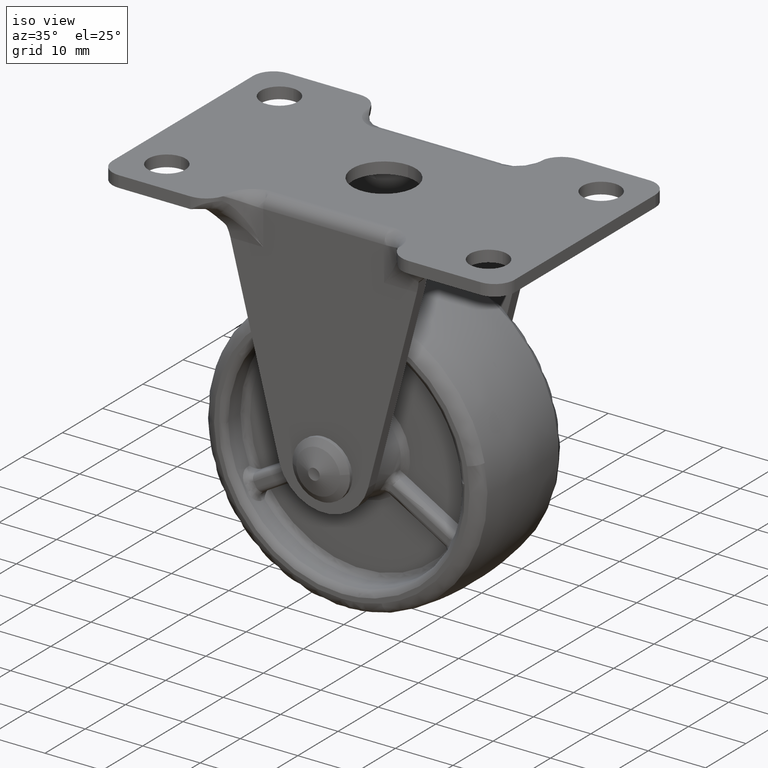
[diagram: clean part render]
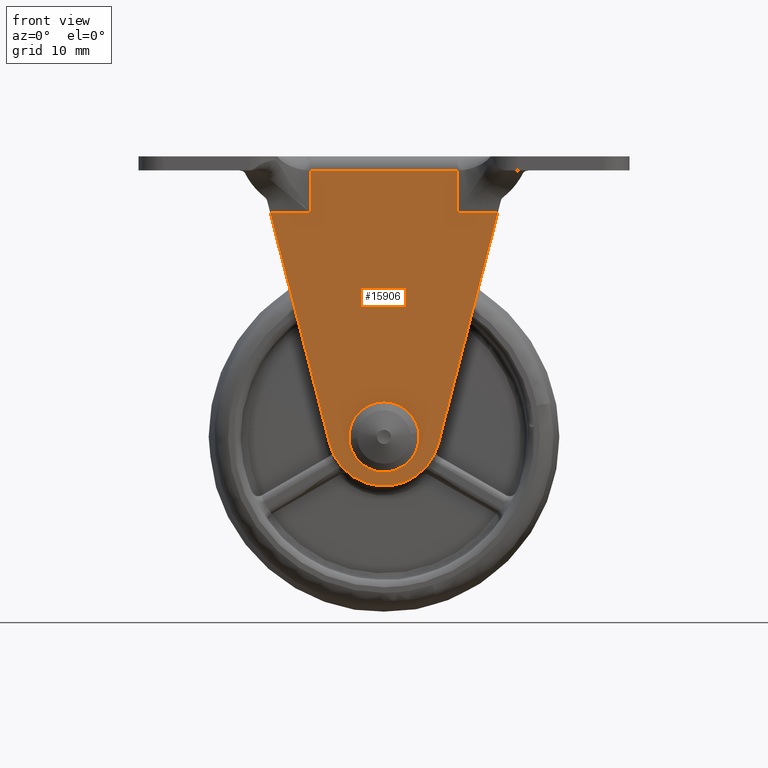
[diagram: tour spotlight — one face highlighted and labeled with its STEP entity id]
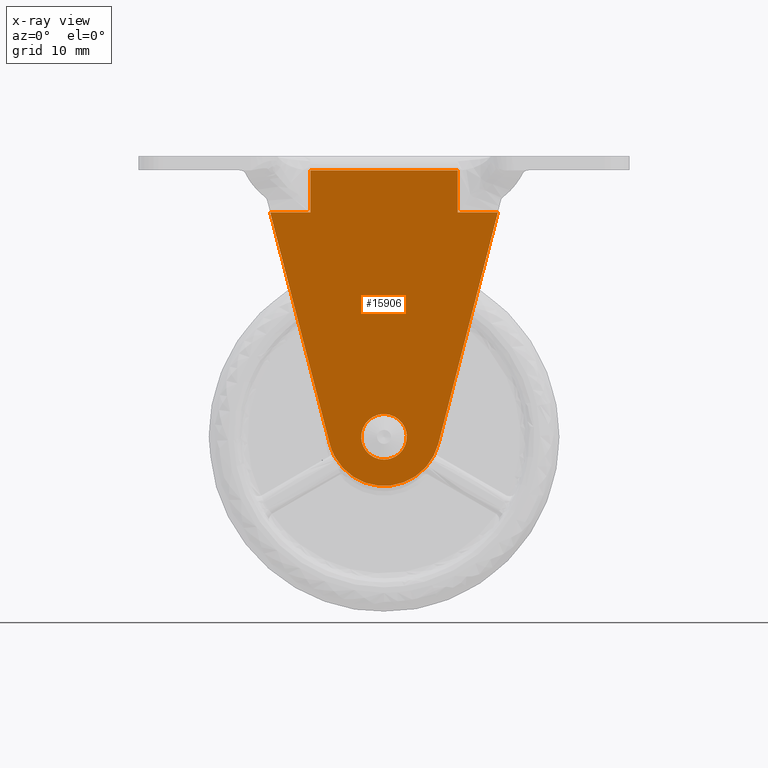
[diagram: x-ray of the same camera — body ghosted, this tour face saturated]
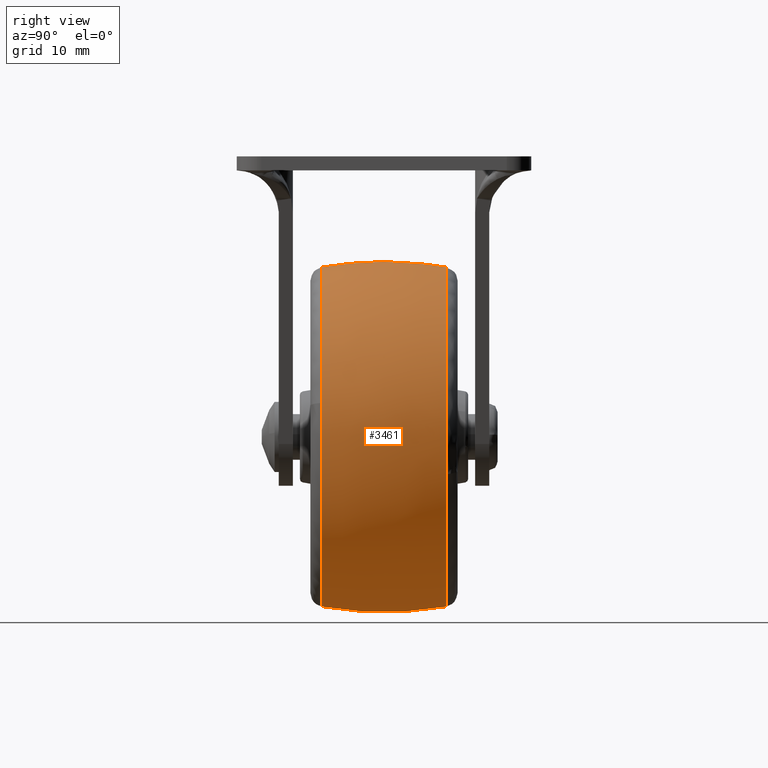
[diagram: tour spotlight — one face highlighted and labeled with its STEP entity id]
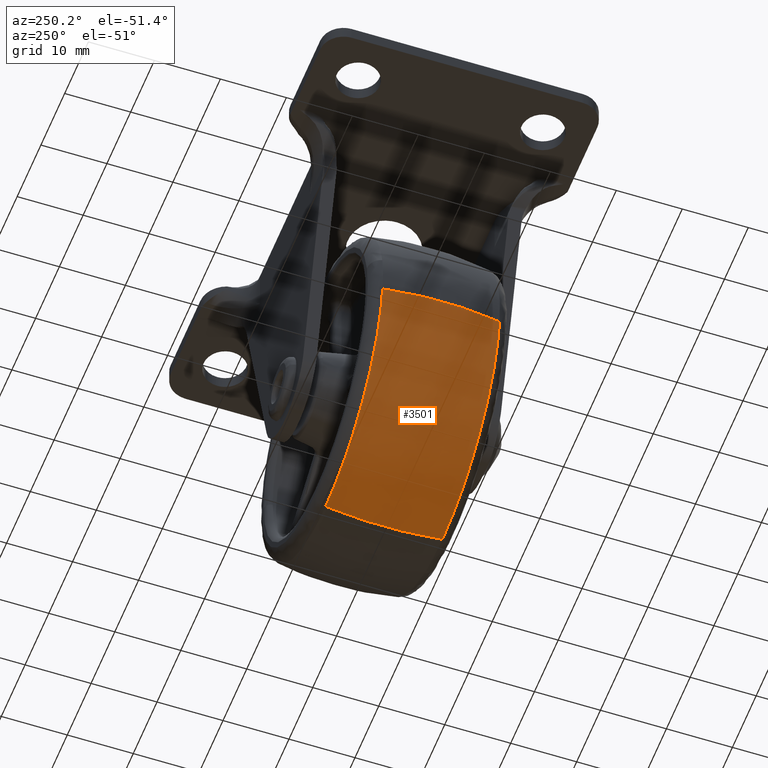
[diagram: tour spotlight — one face highlighted and labeled with its STEP entity id]
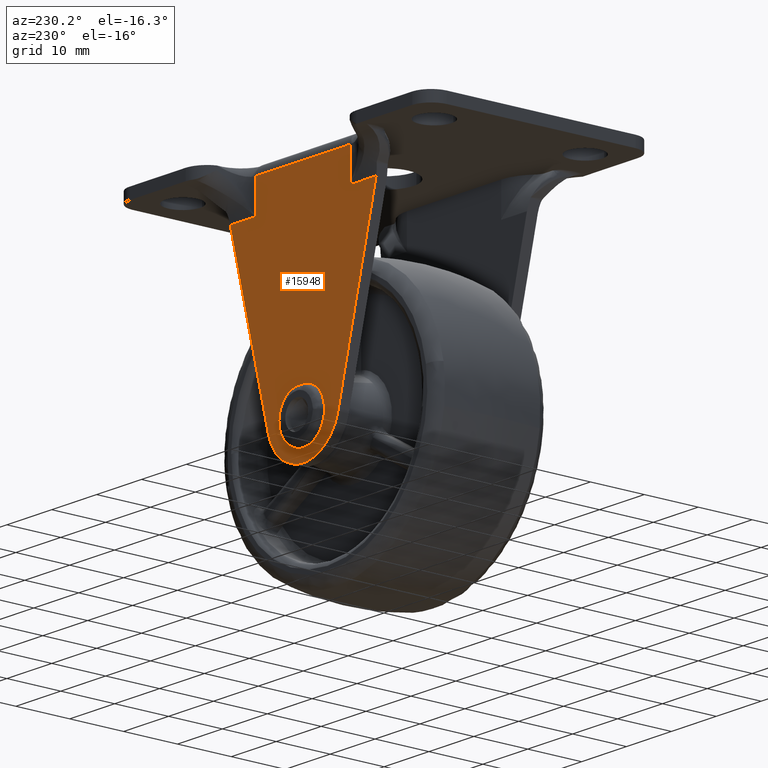
[diagram: tour spotlight — one face highlighted and labeled with its STEP entity id]
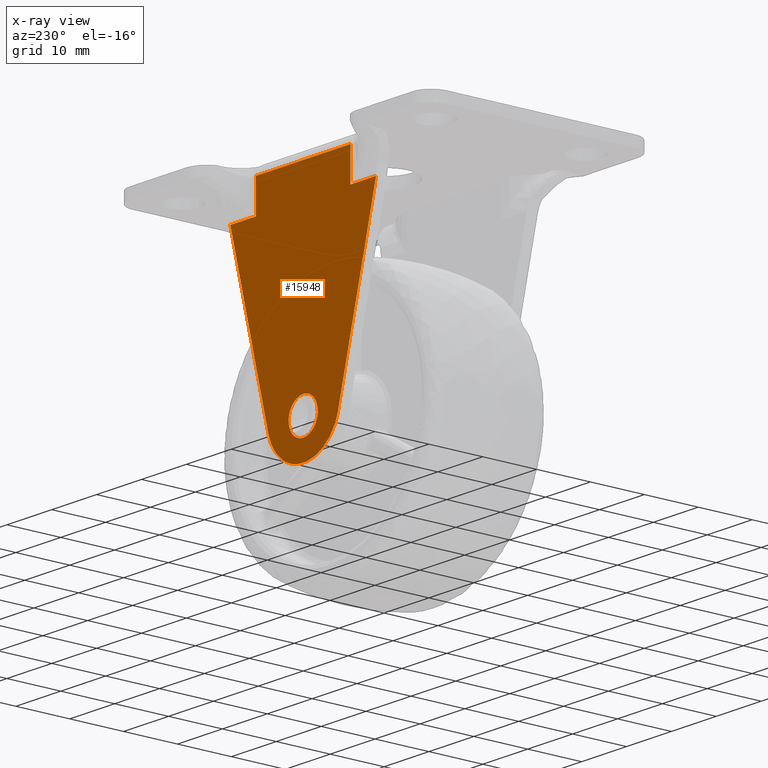
[diagram: x-ray of the same camera — body ghosted, this tour face saturated]
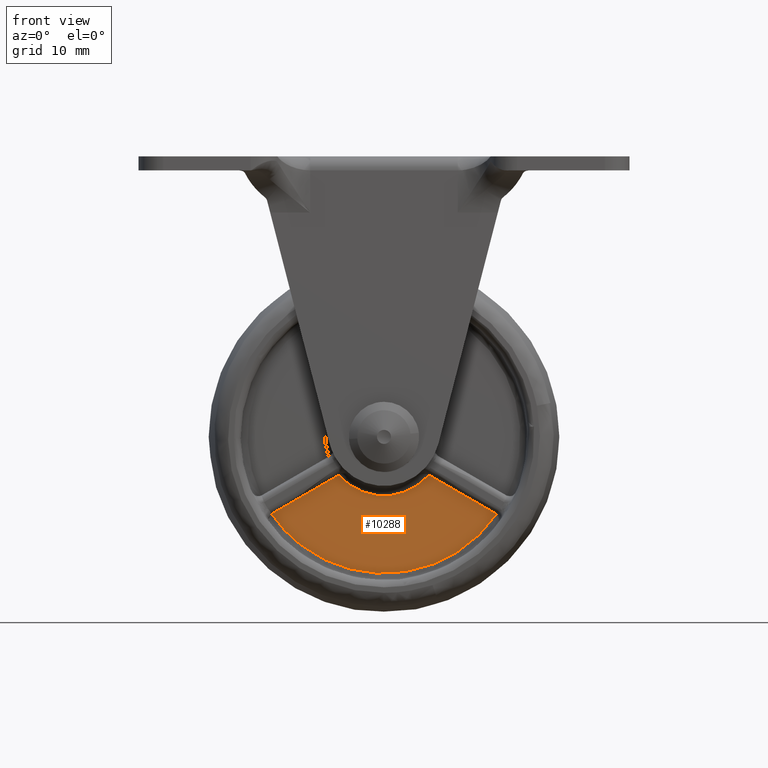
[diagram: tour spotlight — one face highlighted and labeled with its STEP entity id]
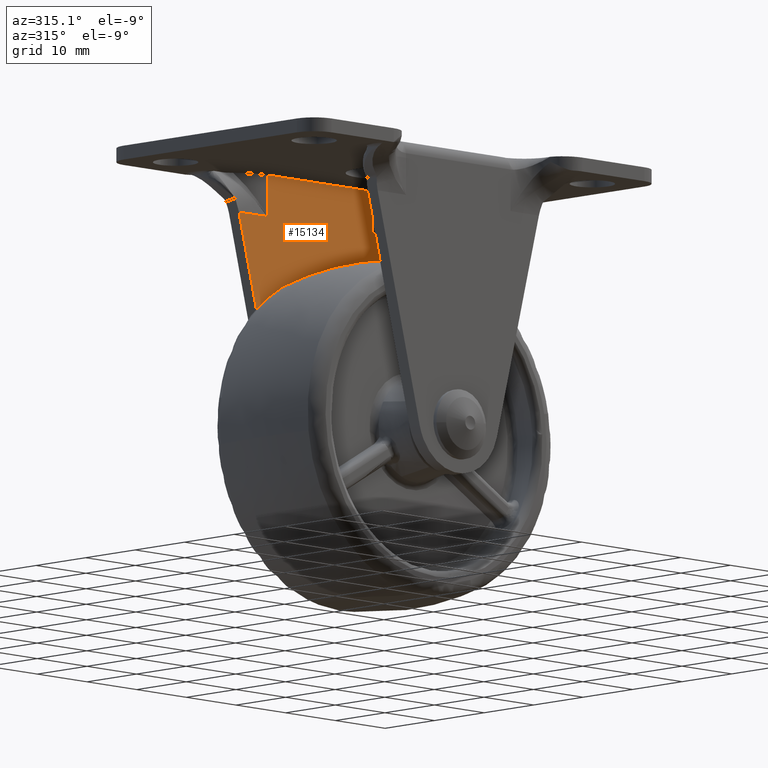
[diagram: tour spotlight — one face highlighted and labeled with its STEP entity id]
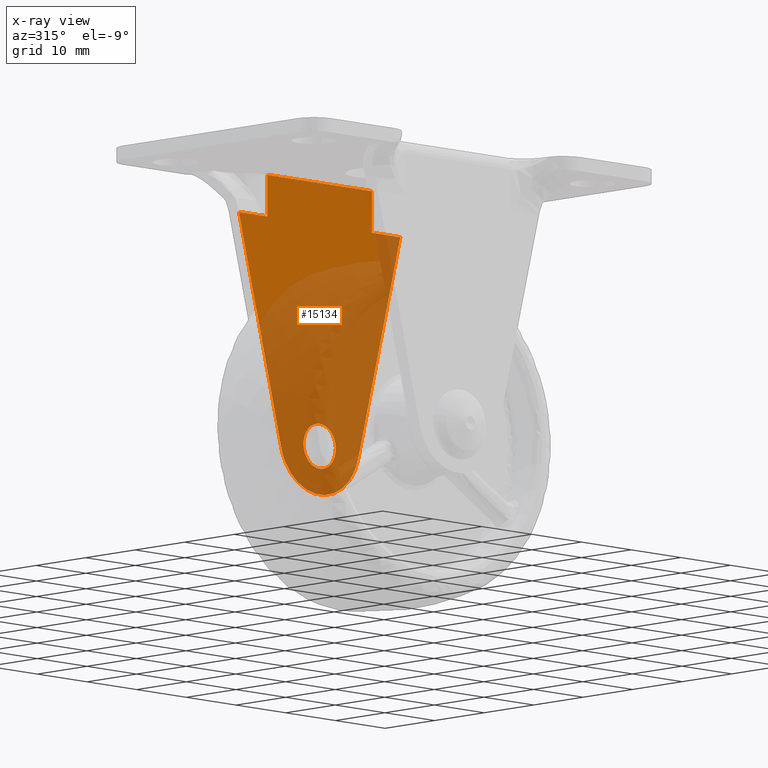
[diagram: x-ray of the same camera — body ghosted, this tour face saturated]
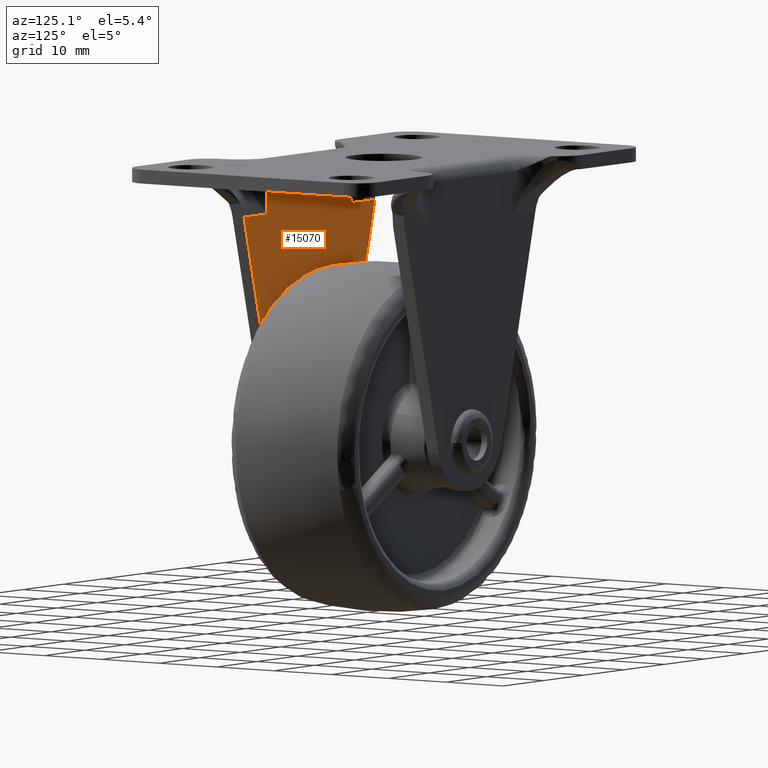
[diagram: tour spotlight — one face highlighted and labeled with its STEP entity id]
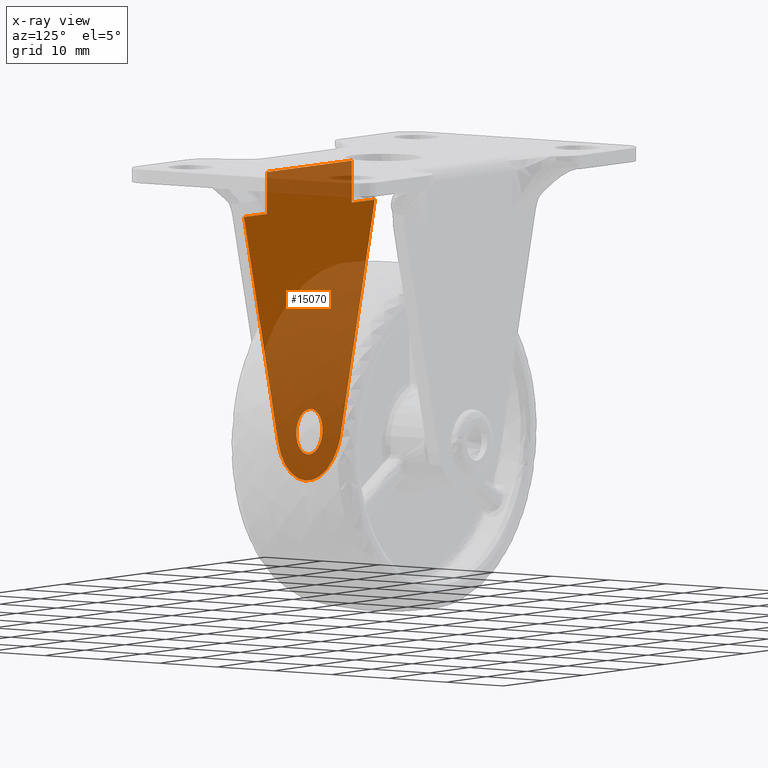
[diagram: x-ray of the same camera — body ghosted, this tour face saturated]
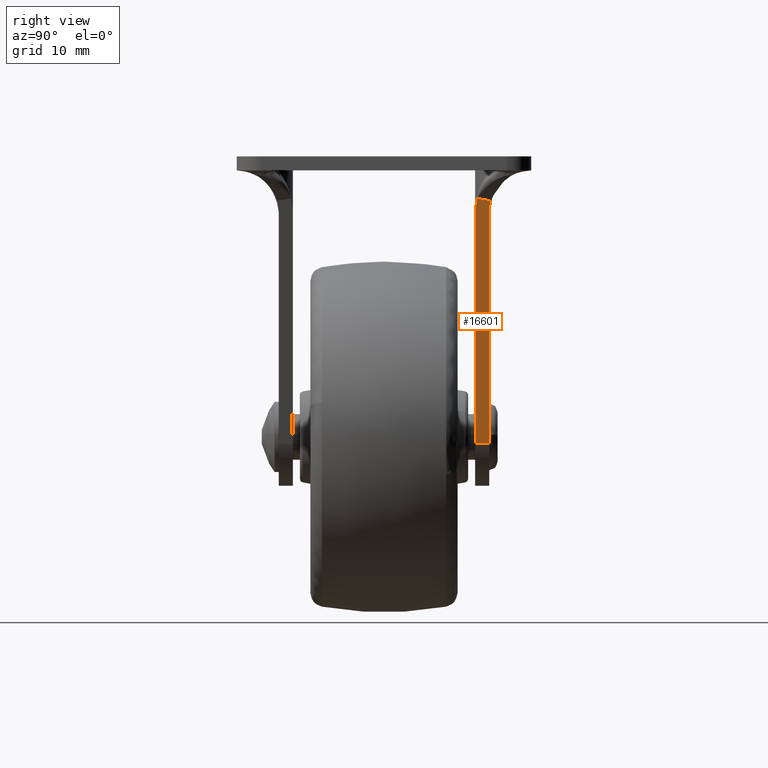
[diagram: tour spotlight — one face highlighted and labeled with its STEP entity id]
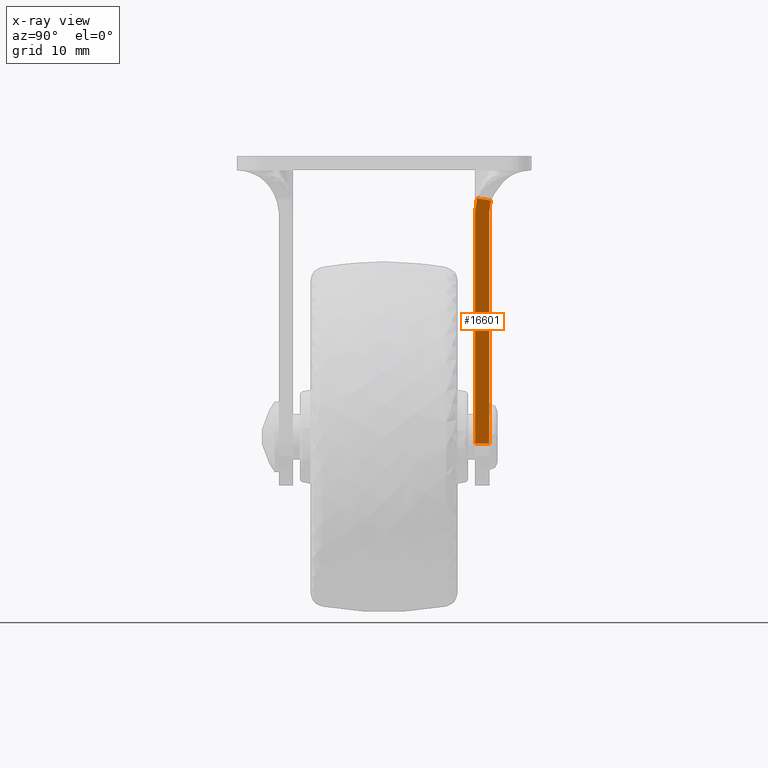
[diagram: x-ray of the same camera — body ghosted, this tour face saturated]
A machine part: a face-by-face anatomy tour. The part has 241 B-rep faces; the first image is the clean iso view, then the 8 largest visible faces are spotlighted one at a time (largest first), each with its STEP entity span.

Face 1 — front view, entity #15906. An x-ray twin of the same camera follows (body ghosted, this face saturated) — the face is partly hidden behind the body. In plain terms, the highlighted face is a freeform B-spline surface patch.
Definition (entity closure, byte-faithful):
#10834=CARTESIAN_POINT('',(3.239981334603295,-15.0,14.754992061488680));
#10835=VERTEX_POINT('',#10834);
#10841=CARTESIAN_POINT('',(0.0,-15.0,17.750000000000000));
#10842=VERTEX_POINT('',#10841);
#10843=CARTESIAN_POINT('',(0.0,-15.0,17.750000000000000));
#10844=CARTESIAN_POINT('',(3.004269097194963,-15.000000000000005,17.750000000000004));
#10845=CARTESIAN_POINT('',(3.239981334603296,-14.999999999999998,14.754992061488682));
#10853=(BOUNDED_CURVE()B_SPLINE_CURVE(2,(#10843,#10844,#10845),.UNSPECIFIED.,.F.,.U.)B_SPLINE_CURVE_WITH_KNOTS((3,3),(0.0,0.236331300593277),.UNSPECIFIED.)CURVE()GEOMETRIC_REPRESENTATION_ITEM()RATIONAL_B_SPLINE_CURVE((1.0,0.723120658651462,0.969723356089403))REPRESENTATION_ITEM(''));
#10854=EDGE_CURVE('',#10842,#10835,#10853,.T.);
#10856=CARTESIAN_POINT('',(-3.239981334603295,-15.0,14.245007938511320));
#10857=VERTEX_POINT('',#10856);
#10858=CARTESIAN_POINT('',(-3.239981334603295,-14.999999999999996,14.245007938511314));
#10859=CARTESIAN_POINT('',(-3.250000000000000,-14.999999999999998,14.372307151850153));
#10860=CARTESIAN_POINT('',(-3.250000000000000,-15.0,14.500000000000000));
#10861=CARTESIAN_POINT('',(-3.250000000000000,-14.999999999999996,17.750000000000004));
#10862=CARTESIAN_POINT('',(0.0,-15.0,17.750000000000000));
#10870=(BOUNDED_CURVE()B_SPLINE_CURVE(2,(#10858,#10859,#10860,#10861,#10862),.UNSPECIFIED.,.F.,.U.)B_SPLINE_CURVE_WITH_KNOTS((3,2,3),(0.736331300593277,0.750000000000000,1.0),.UNSPECIFIED.)CURVE()GEOMETRIC_REPRESENTATION_ITEM()RATIONAL_B_SPLINE_CURVE((0.969723356089403,0.983986122535085,1.0,0.707106781186547,1.0))REPRESENTATION_ITEM(''));
#10871=EDGE_CURVE('',#10857,#10842,#10870,.T.);
#10947=CARTESIAN_POINT('',(0.0,-15.0,11.250000000000000));
#10948=VERTEX_POINT('',#10947);
#10949=CARTESIAN_POINT('',(0.0,-15.0,11.250000000000000));
#10950=CARTESIAN_POINT('',(-3.004269097194972,-15.000000000000004,11.250000000000002));
#10951=CARTESIAN_POINT('',(-3.239981334603295,-15.000000000000004,14.245007938511314));
#10959=(BOUNDED_CURVE()B_SPLINE_CURVE(2,(#10949,#10950,#10951),.UNSPECIFIED.,.F.,.U.)B_SPLINE_CURVE_WITH_KNOTS((3,3),(0.500000000000000,0.736331300593278),.UNSPECIFIED.)CURVE()GEOMETRIC_REPRESENTATION_ITEM()RATIONAL_B_SPLINE_CURVE((1.0,0.723120658651461,0.969723356089405))REPRESENTATION_ITEM(''));
#10960=EDGE_CURVE('',#10948,#10857,#10959,.T.);
#10962=CARTESIAN_POINT('',(3.239981334603296,-14.999999999999998,14.754992061488682));
#10963=CARTESIAN_POINT('',(3.250000000000001,-15.000000000000005,14.627692848149845));
#10964=CARTESIAN_POINT('',(3.250000000000000,-15.0,14.500000000000000));
#10965=CARTESIAN_POINT('',(3.250000000000000,-14.999999999999996,11.250000000000000));
#10966=CARTESIAN_POINT('',(0.0,-15.0,11.250000000000000));
#10974=(BOUNDED_CURVE()B_SPLINE_CURVE(2,(#10962,#10963,#10964,#10965,#10966),.UNSPECIFIED.,.F.,.U.)B_SPLINE_CURVE_WITH_KNOTS((3,2,3),(0.236331300593277,0.250000000000000,0.500000000000000),.UNSPECIFIED.)CURVE()GEOMETRIC_REPRESENTATION_ITEM()RATIONAL_B_SPLINE_CURVE((0.969723356089403,0.983986122535086,1.0,0.707106781186547,1.0))REPRESENTATION_ITEM(''));
#10975=EDGE_CURVE('',#10835,#10948,#10974,.T.);
#13853=CARTESIAN_POINT('',(-10.514713629548220,-15.000000000004050,52.500000000000000));
#13854=VERTEX_POINT('',#13853);
#13919=CARTESIAN_POINT('',(10.514709999999999,-15.0,52.500000000000000));
#13920=VERTEX_POINT('',#13919);
#13942=CARTESIAN_POINT('',(10.514709999999999,-15.0,52.500000000000000));
#13943=CARTESIAN_POINT('',(-10.514713629548220,-15.000000000004050,52.500000000000000));
#13944=QUASI_UNIFORM_CURVE('',1,(#13942,#13943),.UNSPECIFIED.,.F.,.U.);
#13945=EDGE_CURVE('',#13920,#13854,#13944,.T.);
#14530=CARTESIAN_POINT('',(10.514709999999999,-15.0,46.500000000000000));
#14531=VERTEX_POINT('',#14530);
#14743=CARTESIAN_POINT('',(-10.514713629548220,-15.000000000004050,46.500000000000000));
#14744=VERTEX_POINT('',#14743);
#15263=CARTESIAN_POINT('',(-10.514713629548220,-15.000000000004050,46.500000000000000));
#15264=CARTESIAN_POINT('',(-10.514713629548220,-15.000000000004050,52.500000000000000));
#15265=QUASI_UNIFORM_CURVE('',1,(#15263,#15264),.UNSPECIFIED.,.F.,.U.);
#15266=EDGE_CURVE('',#14744,#13854,#15265,.T.);
#15298=CARTESIAN_POINT('',(10.514709999999999,-15.0,46.500000000000000));
#15299=CARTESIAN_POINT('',(10.514709999999999,-15.0,52.500000000000000));
#15300=QUASI_UNIFORM_CURVE('',1,(#15298,#15299),.UNSPECIFIED.,.F.,.U.);
#15301=EDGE_CURVE('',#14531,#13920,#15300,.T.);
#15829=CARTESIAN_POINT('',(16.235484006047699,-15.0,46.500000000000000));
#15830=VERTEX_POINT('',#15829);
#15831=CARTESIAN_POINT('',(10.514709999999999,-15.0,46.500000000000000));
#15832=CARTESIAN_POINT('',(16.235484006047699,-15.0,46.500000000000000));
#15833=QUASI_UNIFORM_CURVE('',1,(#15831,#15832),.UNSPECIFIED.,.F.,.U.);
#15834=EDGE_CURVE('',#14531,#15830,#15833,.T.);
#15853=CARTESIAN_POINT('',(-17.857412033563531,-15.0,5.252235897286143));
#15854=CARTESIAN_POINT('',(-17.857412033563531,-15.0,54.747751794843182));
#15855=CARTESIAN_POINT('',(17.857407387316510,-15.0,5.252235897286143));
#15856=CARTESIAN_POINT('',(17.857407387316510,-15.0,54.747751794843182));
#15857=B_SPLINE_SURFACE_WITH_KNOTS('',1,1,((#15853,#15855),(#15854,#15856)),.UNSPECIFIED.,.F.,.F.,.U.,(2,2),(2,2),(0.0,49.495515897557027),(0.0,35.714819420880040),.UNSPECIFIED.);
#15858=ORIENTED_EDGE('',*,*,#15301,.T.);
#15859=ORIENTED_EDGE('',*,*,#13945,.T.);
#15860=ORIENTED_EDGE('',*,*,#15266,.F.);
#15861=CARTESIAN_POINT('',(-16.235487491042299,-15.0,46.500000000000000));
#15862=VERTEX_POINT('',#15861);
#15863=CARTESIAN_POINT('',(-16.235487491042299,-15.0,46.500000000000000));
#15864=CARTESIAN_POINT('',(-10.514713629548220,-15.000000000004050,46.500000000000000));
#15865=QUASI_UNIFORM_CURVE('',1,(#15863,#15864),.UNSPECIFIED.,.F.,.U.);
#15866=EDGE_CURVE('',#15862,#14744,#15865,.T.);
#15867=ORIENTED_EDGE('',*,*,#15866,.F.);
#15868=CARTESIAN_POINT('',(-7.747729266994340,-15.0,13.506821602103139));
#15869=VERTEX_POINT('',#15868);
#15870=CARTESIAN_POINT('',(-7.747729266994340,-15.0,13.506821602103139));
#15871=CARTESIAN_POINT('',(-16.235487491042299,-15.0,46.500000000000000));
#15872=QUASI_UNIFORM_CURVE('',1,(#15870,#15871),.UNSPECIFIED.,.F.,.U.);
#15873=EDGE_CURVE('',#15869,#15862,#15872,.T.);
#15874=ORIENTED_EDGE('',*,*,#15873,.F.);
#15875=CARTESIAN_POINT('',(7.747727412490600,-15.0,13.506821941964301));
#15876=VERTEX_POINT('',#15875);
#15877=CARTESIAN_POINT('',(7.747727412490606,-15.0,13.506821941964301));
#15878=CARTESIAN_POINT('',(6.202421409813919,-15.0,7.499986621172252));
#15879=CARTESIAN_POINT('',(-0.000000795504218,-15.0,7.499986485134802));
#15880=CARTESIAN_POINT('',(-6.202423000822352,-15.0,7.499986349097354));
#15881=CARTESIAN_POINT('',(-7.747729266994338,-15.0,13.506821602103139));
#15889=(BOUNDED_CURVE()B_SPLINE_CURVE(2,(#15877,#15878,#15879,#15880,#15881),.UNSPECIFIED.,.F.,.U.)B_SPLINE_CURVE_WITH_KNOTS((3,2,3),(0.0,0.500000000000000,1.0),.UNSPECIFIED.)CURVE()GEOMETRIC_REPRESENTATION_ITEM()RATIONAL_B_SPLINE_CURVE((1.0,0.790299180417655,1.0,0.790299180417655,1.0))REPRESENTATION_ITEM(''));
#15890=EDGE_CURVE('',#15876,#15869,#15889,.T.);
#15891=ORIENTED_EDGE('',*,*,#15890,.F.);
#15892=CARTESIAN_POINT('',(16.235484006047699,-15.0,46.500000000000000));
#15893=CARTESIAN_POINT('',(7.747727412490600,-15.0,13.506821941964301));
#15894=QUASI_UNIFORM_CURVE('',1,(#15892,#15893),.UNSPECIFIED.,.F.,.U.);
#15895=EDGE_CURVE('',#15830,#15876,#15894,.T.);
#15896=ORIENTED_EDGE('',*,*,#15895,.F.);
#15897=ORIENTED_EDGE('',*,*,#15834,.F.);
#15898=EDGE_LOOP('',(#15858,#15859,#15860,#15867,#15874,#15891,#15896,#15897));
#15899=FACE_OUTER_BOUND('',#15898,.T.);
#15900=ORIENTED_EDGE('',*,*,#10960,.T.);
#15901=ORIENTED_EDGE('',*,*,#10871,.T.);
#15902=ORIENTED_EDGE('',*,*,#10854,.T.);
#15903=ORIENTED_EDGE('',*,*,#10975,.T.);
#15904=EDGE_LOOP('',(#15900,#15901,#15902,#15903));
#15905=FACE_BOUND('',#15904,.T.);
#15906=ADVANCED_FACE('',(#15899,#15905),#15857,.F.);

Face 2 — right view, entity #3461. In plain terms, the highlighted face is a freeform B-spline surface patch.
Definition (entity closure, byte-faithful):
#2684=CARTESIAN_POINT('',(2.722088697652068,-8.854157117021810,-33.665062567108492));
#2685=VERTEX_POINT('',#2684);
#2699=CARTESIAN_POINT('',(-21.0,-8.854166666666689,-14.290206943750601));
#2700=VERTEX_POINT('',#2699);
#2701=CARTESIAN_POINT('',(-21.0,-8.854166666666689,-14.290206943750601));
#2702=CARTESIAN_POINT('',(-1.226815388082482,-8.854166758253946,-14.290206842148784));
#2703=CARTESIAN_POINT('',(2.722088697652068,-8.854157117021810,-33.665062567108485));
#2711=(BOUNDED_CURVE()B_SPLINE_CURVE(2,(#2701,#2702,#2703),.UNSPECIFIED.,.F.,.U.)B_SPLINE_CURVE_WITH_KNOTS((3,3),(0.0,0.215767026846942),.UNSPECIFIED.)CURVE()GEOMETRIC_REPRESENTATION_ITEM()RATIONAL_B_SPLINE_CURVE((1.0,0.747213203971962,0.930770851184997))REPRESENTATION_ITEM(''));
#2712=EDGE_CURVE('',#2700,#2685,#2711,.T.);
#2714=CARTESIAN_POINT('',(-45.047874610109112,-8.854162436439413,-41.295325278915698));
#2715=VERTEX_POINT('',#2714);
#2716=CARTESIAN_POINT('',(-45.047874610109098,-8.854162436439413,-41.295325278915691));
#2717=CARTESIAN_POINT('',(-45.209793792759001,-8.854162545540815,-39.902352265746387));
#2718=CARTESIAN_POINT('',(-45.209793770863122,-8.854162668058764,-38.500000083066709));
#2719=CARTESIAN_POINT('',(-45.209793392859254,-8.854164783172402,-14.290206982878134));
#2720=CARTESIAN_POINT('',(-21.0,-8.854166666666689,-14.290206943750601));
#2728=(BOUNDED_CURVE()B_SPLINE_CURVE(2,(#2716,#2717,#2718,#2719,#2720),.UNSPECIFIED.,.F.,.U.)B_SPLINE_CURVE_WITH_KNOTS((3,2,3),(0.730000280705535,0.750000000000000,1.0),.UNSPECIFIED.)CURVE()GEOMETRIC_REPRESENTATION_ITEM()RATIONAL_B_SPLINE_CURVE((0.956886670687944,0.976568871361915,1.0,0.707106781186547,1.0))REPRESENTATION_ITEM(''));
#2729=EDGE_CURVE('',#2715,#2700,#2728,.T.);
#2731=CARTESIAN_POINT('',(-21.0,-8.854142343433823,-62.709797432641437));
#2732=VERTEX_POINT('',#2731);
#2746=CARTESIAN_POINT('',(-13.458346598385569,-8.854142967169373,-61.505167791638648));
#2747=VERTEX_POINT('',#2746);
#2748=CARTESIAN_POINT('',(-13.458346598385567,-8.854142967169373,-61.505167791638648));
#2749=CARTESIAN_POINT('',(-17.132965463031478,-8.854142343433823,-62.709797432641452));
#2750=CARTESIAN_POINT('',(-21.0,-8.854142343433823,-62.709797432641437));
#2758=(BOUNDED_CURVE()B_SPLINE_CURVE(2,(#2748,#2749,#2750),.UNSPECIFIED.,.F.,.U.)B_SPLINE_CURVE_WITH_KNOTS((3,3),(0.447031385222976,0.500000000000000),.UNSPECIFIED.)CURVE()GEOMETRIC_REPRESENTATION_ITEM()RATIONAL_B_SPLINE_CURVE((0.902183229235559,0.937943407687471,1.0))REPRESENTATION_ITEM(''));
#2759=EDGE_CURVE('',#2747,#2732,#2758,.T.);
#2810=CARTESIAN_POINT('',(2.722088697652068,-8.854157117021810,-33.665062567108485));
#2811=CARTESIAN_POINT('',(3.209793998590873,-8.854155905658534,-36.057934616023637));
#2812=CARTESIAN_POINT('',(3.209793935317078,-8.854154668112409,-38.500002021758363));
#2813=CARTESIAN_POINT('',(3.209793480832489,-8.854145779035251,-56.040944665727636));
#2814=CARTESIAN_POINT('',(-13.458346598385569,-8.854142967169373,-61.505167791638662));
#2822=(BOUNDED_CURVE()B_SPLINE_CURVE(2,(#2810,#2811,#2812,#2813,#2814),.UNSPECIFIED.,.F.,.U.)B_SPLINE_CURVE_WITH_KNOTS((3,2,3),(0.215767026846942,0.250000000000000,0.447031385222976),.UNSPECIFIED.)CURVE()GEOMETRIC_REPRESENTATION_ITEM()RATIONAL_B_SPLINE_CURVE((0.930770851184997,0.959893577214585,1.0,0.769163373499077,0.902183229235559))REPRESENTATION_ITEM(''));
#2823=EDGE_CURVE('',#2685,#2747,#2822,.T.);
#2852=CARTESIAN_POINT('',(2.623174043757711,8.854160903996812,-43.797146238802533));
#2853=VERTEX_POINT('',#2852);
#2854=CARTESIAN_POINT('',(-21.0,8.854157092801584,-62.709794778841641));
#2855=VERTEX_POINT('',#2854);
#2856=CARTESIAN_POINT('',(2.623174043757711,8.854160903996812,-43.797146238802526));
#2857=CARTESIAN_POINT('',(-1.617706165274392,8.854157092801584,-62.709794778841626));
#2858=CARTESIAN_POINT('',(-21.0,8.854157092801584,-62.709794778841641));
#2866=(BOUNDED_CURVE()B_SPLINE_CURVE(2,(#2856,#2857,#2858),.UNSPECIFIED.,.F.,.U.)B_SPLINE_CURVE_WITH_KNOTS((3,3),(0.287436169801422,0.500000000000000),.UNSPECIFIED.)CURVE()GEOMETRIC_REPRESENTATION_ITEM()RATIONAL_B_SPLINE_CURVE((0.925416961810218,0.750965982279289,1.0))REPRESENTATION_ITEM(''));
#2867=EDGE_CURVE('',#2853,#2855,#2866,.T.);
#2869=CARTESIAN_POINT('',(-45.047873707745012,8.854167481399959,-41.295325180226357));
#2870=VERTEX_POINT('',#2869);
#2884=CARTESIAN_POINT('',(-44.887462520763023,8.854166666744089,-34.562587887344193));
#2885=VERTEX_POINT('',#2884);
#2886=CARTESIAN_POINT('',(-45.047873707745005,8.854167481399959,-41.295325180226364));
#2887=CARTESIAN_POINT('',(-45.209793056249403,8.854166666666659,-39.902352183224849));
#2888=CARTESIAN_POINT('',(-45.209793056249403,8.854166666666659,-38.500000000000000));
#2889=CARTESIAN_POINT('',(-45.209793056249410,8.854166666666659,-36.518100382612822));
#2890=CARTESIAN_POINT('',(-44.887462520763016,8.854166666744089,-34.562587887344193));
#2898=(BOUNDED_CURVE()B_SPLINE_CURVE(2,(#2886,#2887,#2888,#2889,#2890),.UNSPECIFIED.,.F.,.U.)B_SPLINE_CURVE_WITH_KNOTS((3,2,3),(0.730000280662495,0.750000000000000,0.777993891200999),.UNSPECIFIED.)CURVE()GEOMETRIC_REPRESENTATION_ITEM()RATIONAL_B_SPLINE_CURVE((0.956886670603229,0.976568871311490,1.0,0.967203116396104,0.941751131922921))REPRESENTATION_ITEM(''));
#2899=EDGE_CURVE('',#2870,#2885,#2898,.T.);
#2993=CARTESIAN_POINT('',(-21.0,8.854166666666659,-14.290206943750601));
#2994=VERTEX_POINT('',#2993);
#2995=CARTESIAN_POINT('',(-21.0,8.854166666666659,-14.290206943750601));
#2996=CARTESIAN_POINT('',(3.209793056249402,8.854166666666661,-14.290206943750604));
#2997=CARTESIAN_POINT('',(3.209793056249400,8.854161879734122,-38.500000861296122));
#2998=CARTESIAN_POINT('',(3.209793056249401,8.854161349616966,-41.181055374297621));
#2999=CARTESIAN_POINT('',(2.623174043757711,8.854160903996812,-43.797146238802526));
#3007=(BOUNDED_CURVE()B_SPLINE_CURVE(2,(#2995,#2996,#2997,#2998,#2999),.UNSPECIFIED.,.F.,.U.)B_SPLINE_CURVE_WITH_KNOTS((3,2,3),(0.0,0.250000000000000,0.287436169801422),.UNSPECIFIED.)CURVE()GEOMETRIC_REPRESENTATION_ITEM()RATIONAL_B_SPLINE_CURVE((1.0,0.707106781186547,1.0,0.956140798907259,0.925416961810218))REPRESENTATION_ITEM(''));
#3008=EDGE_CURVE('',#2994,#2853,#3007,.T.);
#3042=CARTESIAN_POINT('',(-44.887462520763016,8.854166666744089,-34.562587887344186));
#3043=CARTESIAN_POINT('',(-41.545930610009115,8.854166666666659,-14.290206943750599));
#3044=CARTESIAN_POINT('',(-21.0,8.854166666666659,-14.290206943750601));
#3052=(BOUNDED_CURVE()B_SPLINE_CURVE(2,(#3042,#3043,#3044),.UNSPECIFIED.,.F.,.U.)B_SPLINE_CURVE_WITH_KNOTS((3,3),(0.777993891200998,1.0),.UNSPECIFIED.)CURVE()GEOMETRIC_REPRESENTATION_ITEM()RATIONAL_B_SPLINE_CURVE((0.941751131922923,0.739903664790443,1.0))REPRESENTATION_ITEM(''));
#3053=EDGE_CURVE('',#2885,#2994,#3052,.T.);
#3368=CARTESIAN_POINT('',(-44.880277105968041,9.745420283639321,-41.275883309432409));
#3369=CARTESIAN_POINT('',(-45.832791040827090,4.919888308015623,-41.386605120659475));
#3370=CARTESIAN_POINT('',(-45.832791040827097,-2.479828E-015,-41.386605120659482));
#3371=CARTESIAN_POINT('',(-45.832791040827090,-4.919888308015623,-41.386605120659475));
#3372=CARTESIAN_POINT('',(-44.880277105968041,-9.745420283639318,-41.275883309432409));
#3373=CARTESIAN_POINT('',(-45.041072413796492,9.745420283639321,-39.892598754481853));
#3374=CARTESIAN_POINT('',(-45.999999999999993,4.919888308015622,-39.948145418091535));
#3375=CARTESIAN_POINT('',(-45.999999999999993,-2.479828E-015,-39.948145418091542));
#3376=CARTESIAN_POINT('',(-45.999999999999993,-4.919888308015622,-39.948145418091535));
#3377=CARTESIAN_POINT('',(-45.041072413796492,-9.745420283639318,-39.892598754481853));
#3378=CARTESIAN_POINT('',(-45.041072413796499,9.745420283639323,-38.500000000000007));
#3379=CARTESIAN_POINT('',(-46.0,4.919888308015624,-38.500000000000000));
#3380=CARTESIAN_POINT('',(-46.0,-2.479828E-015,-38.500000000000000));
#3381=CARTESIAN_POINT('',(-46.0,-4.919888308015624,-38.500000000000000));
#3382=CARTESIAN_POINT('',(-45.041072413796499,-9.745420283639319,-38.500000000000007));
#3383=CARTESIAN_POINT('',(-45.041072413796485,9.745420283639323,-14.458927586203504));
#3384=CARTESIAN_POINT('',(-45.999999999999993,4.919888308015624,-13.499999999999995));
#3385=CARTESIAN_POINT('',(-46.000000000000007,-2.479828E-015,-13.499999999999995));
#3386=CARTESIAN_POINT('',(-45.999999999999993,-4.919888308015623,-13.499999999999995));
#3387=CARTESIAN_POINT('',(-45.041072413796485,-9.745420283639319,-14.458927586203503));
#3388=CARTESIAN_POINT('',(-21.0,9.745420283639323,-14.458927586203510));
#3389=CARTESIAN_POINT('',(-21.0,4.919888308015624,-13.499999999999998));
#3390=CARTESIAN_POINT('',(-21.0,-2.479828E-015,-13.500000000000000));
#3391=CARTESIAN_POINT('',(-21.0,-4.919888308015624,-13.499999999999998));
#3392=CARTESIAN_POINT('',(-21.0,-9.745420283639319,-14.458927586203510));
#3393=CARTESIAN_POINT('',(3.041072413796495,9.745420283639323,-14.458927586203504));
#3394=CARTESIAN_POINT('',(4.000000000000002,4.919888308015624,-13.499999999999995));
#3395=CARTESIAN_POINT('',(4.000000000000003,-2.479828E-015,-13.499999999999995));
#3396=CARTESIAN_POINT('',(4.000000000000002,-4.919888308015623,-13.499999999999995));
#3397=CARTESIAN_POINT('',(3.041072413796495,-9.745420283639319,-14.458927586203504));
#3398=CARTESIAN_POINT('',(3.041072413796492,9.745420283639323,-38.500000000000007));
#3399=CARTESIAN_POINT('',(4.000000000000000,4.919888308015624,-38.500000000000000));
#3400=CARTESIAN_POINT('',(4.0,-2.479828E-015,-38.500000000000000));
#3401=CARTESIAN_POINT('',(4.000000000000000,-4.919888308015624,-38.500000000000000));
#3402=CARTESIAN_POINT('',(3.041072413796493,-9.745420283639319,-38.500000000000007));
#3403=CARTESIAN_POINT('',(3.041072413796495,9.745420283639323,-62.541072413796485));
#3404=CARTESIAN_POINT('',(4.000000000000002,4.919888308015624,-63.499999999999993));
#3405=CARTESIAN_POINT('',(4.000000000000003,-2.479828E-015,-63.499999999999993));
#3406=CARTESIAN_POINT('',(4.000000000000002,-4.919888308015623,-63.499999999999993));
#3407=CARTESIAN_POINT('',(3.041072413796495,-9.745420283639319,-62.541072413796485));
#3408=CARTESIAN_POINT('',(-21.0,9.745420283639323,-62.541072413796492));
#3409=CARTESIAN_POINT('',(-21.0,4.919888308015624,-63.499999999999993));
#3410=CARTESIAN_POINT('',(-21.0,-2.479828E-015,-63.500000000000000));
#3411=CARTESIAN_POINT('',(-21.0,-4.919888308015624,-63.499999999999993));
#3412=CARTESIAN_POINT('',(-21.0,-9.745420283639319,-62.541072413796492));
#3420=(BOUNDED_SURFACE()B_SPLINE_SURFACE(2,2,((#3368,#3373,#3378,#3383,#3388,#3393,#3398,#3403,#3408),(#3369,#3374,#3379,#3384,#3389,#3394,#3399,#3404,#3409),(#3370,#3375,#3380,#3385,#3390,#3395,#3400,#3405,#3410),(#3371,#3376,#3381,#3386,#3391,#3396,#3401,#3406,#3411),(#3372,#3377,#3382,#3387,#3392,#3397,#3402,#3407,#3412)),.UNSPECIFIED.,.F.,.F.,.U.)B_SPLINE_SURFACE_WITH_KNOTS((3,2,3),(3,2,2,2,3),(0.0,10.002364155962489,20.004728311924971),(0.0,3.313707807691299,44.735064045000819,86.156420282310336,127.577776519619900),.UNSPECIFIED.)GEOMETRIC_REPRESENTATION_ITEM()RATIONAL_B_SPLINE_SURFACE(((0.917150794697415,0.936015890078735,0.958474336068840,0.677743702627551,0.958474336068840,0.677743702627551,0.958474336068840,0.677743702627551,0.958474336068840),(0.932305335016235,0.951482147783864,0.974311685885782,0.688942400079134,0.974311685885782,0.688942400079134,0.974311685885782,0.688942400079134,0.974311685885782),(0.956886126402807,0.976568547383107,1.0,0.707106781186548,1.0,0.707106781186548,1.0,0.707106781186548,1.0),(0.932305335016235,0.951482147783864,0.974311685885782,0.688942400079134,0.974311685885782,0.688942400079134,0.974311685885782,0.688942400079134,0.974311685885782),(0.917150794697415,0.936015890078735,0.958474336068840,0.677743702627551,0.958474336068840,0.677743702627551,0.958474336068840,0.677743702627551,0.958474336068840)))REPRESENTATION_ITEM('')SURFACE());
#3421=ORIENTED_EDGE('',*,*,#2729,.T.);
#3422=ORIENTED_EDGE('',*,*,#2712,.T.);
#3423=ORIENTED_EDGE('',*,*,#2823,.T.);
#3424=ORIENTED_EDGE('',*,*,#2759,.T.);
#3425=CARTESIAN_POINT('',(-20.999999999999996,8.854157092801584,-62.709794778841641));
#3426=CARTESIAN_POINT('',(-20.999999999999993,4.462340191580635,-63.500000000000000));
#3427=CARTESIAN_POINT('',(-21.0,-2.479828E-015,-63.500000000000000));
#3428=CARTESIAN_POINT('',(-21.0,-4.462332638793008,-63.500000000000000));
#3429=CARTESIAN_POINT('',(-21.000000000000004,-8.854142343433823,-62.709797432641444));
#3437=(BOUNDED_CURVE()B_SPLINE_CURVE(2,(#3425,#3426,#3427,#3428,#3429),.UNSPECIFIED.,.F.,.U.)B_SPLINE_CURVE_WITH_KNOTS((3,2,3),(0.412837564569947,0.500000000000000,0.587162291347746),.UNSPECIFIED.)CURVE()GEOMETRIC_REPRESENTATION_ITEM()RATIONAL_B_SPLINE_CURVE((0.961432542673910,0.976644895816187,1.0,0.976644934422925,0.961432592966949))REPRESENTATION_ITEM(''));
#3438=EDGE_CURVE('',#2855,#2732,#3437,.T.);
#3439=ORIENTED_EDGE('',*,*,#3438,.F.);
#3440=ORIENTED_EDGE('',*,*,#2867,.F.);
#3441=ORIENTED_EDGE('',*,*,#3008,.F.);
#3442=ORIENTED_EDGE('',*,*,#3053,.F.);
#3443=ORIENTED_EDGE('',*,*,#2899,.F.);
#3444=CARTESIAN_POINT('',(-45.047873707745005,8.854167481399959,-41.295325180226364));
#3445=CARTESIAN_POINT('',(-45.832795607811768,4.462345511326186,-41.386565831403971));
#3446=CARTESIAN_POINT('',(-45.832795607990988,1.262257E-014,-41.386565829861695));
#3447=CARTESIAN_POINT('',(-45.832795608170208,-4.462342927925928,-41.386565828319426));
#3448=CARTESIAN_POINT('',(-45.047874610109105,-8.854162436439413,-41.295325278915698));
#3456=(BOUNDED_CURVE()B_SPLINE_CURVE(2,(#3444,#3445,#3446,#3447,#3448),.UNSPECIFIED.,.F.,.U.)B_SPLINE_CURVE_WITH_KNOTS((3,2,3),(0.412837463086621,0.500000000000000,0.587162487630617),.UNSPECIFIED.)CURVE()GEOMETRIC_REPRESENTATION_ITEM()RATIONAL_B_SPLINE_CURVE((0.919981419765148,0.934537917188267,0.956886118190660,0.934537929824212,0.919981436225993))REPRESENTATION_ITEM(''));
#3457=EDGE_CURVE('',#2870,#2715,#3456,.T.);
#3458=ORIENTED_EDGE('',*,*,#3457,.T.);
#3459=EDGE_LOOP('',(#3421,#3422,#3423,#3424,#3439,#3440,#3441,#3442,#3443,#3458));
#3460=FACE_OUTER_BOUND('',#3459,.T.);
#3461=ADVANCED_FACE('',(#3460),#3420,.T.);

Face 3 — auxiliary view, entity #3501. In plain terms, the highlighted face is a freeform B-spline surface patch.
Definition (entity closure, byte-faithful):
#2714=CARTESIAN_POINT('',(-45.047874610109112,-8.854162436439413,-41.295325278915698));
#2715=VERTEX_POINT('',#2714);
#2731=CARTESIAN_POINT('',(-21.0,-8.854142343433823,-62.709797432641437));
#2732=VERTEX_POINT('',#2731);
#2733=CARTESIAN_POINT('',(-21.0,-8.854142343433823,-62.709797432641437));
#2734=CARTESIAN_POINT('',(-42.558656189817590,-8.854152389936619,-62.709795288384605));
#2735=CARTESIAN_POINT('',(-45.047874610109098,-8.854162436439413,-41.295325278915691));
#2743=(BOUNDED_CURVE()B_SPLINE_CURVE(2,(#2733,#2734,#2735),.UNSPECIFIED.,.F.,.U.)B_SPLINE_CURVE_WITH_KNOTS((3,3),(0.500000000000000,0.730000280705535),.UNSPECIFIED.)CURVE()GEOMETRIC_REPRESENTATION_ITEM()RATIONAL_B_SPLINE_CURVE((1.0,0.730537909824633,0.956886670687944))REPRESENTATION_ITEM(''));
#2744=EDGE_CURVE('',#2732,#2715,#2743,.T.);
#2854=CARTESIAN_POINT('',(-21.0,8.854157092801584,-62.709794778841641));
#2855=VERTEX_POINT('',#2854);
#2869=CARTESIAN_POINT('',(-45.047873707745012,8.854167481399959,-41.295325180226357));
#2870=VERTEX_POINT('',#2869);
#2871=CARTESIAN_POINT('',(-21.0,8.854157092801584,-62.709794778841641));
#2872=CARTESIAN_POINT('',(-42.558655733468783,8.854162287100772,-62.709793909080631));
#2873=CARTESIAN_POINT('',(-45.047873707745005,8.854167481399959,-41.295325180226364));
#2881=(BOUNDED_CURVE()B_SPLINE_CURVE(2,(#2871,#2872,#2873),.UNSPECIFIED.,.F.,.U.)B_SPLINE_CURVE_WITH_KNOTS((3,3),(0.500000000000000,0.730000280662495),.UNSPECIFIED.)CURVE()GEOMETRIC_REPRESENTATION_ITEM()RATIONAL_B_SPLINE_CURVE((1.0,0.730537909875057,0.956886670603229))REPRESENTATION_ITEM(''));
#2882=EDGE_CURVE('',#2855,#2870,#2881,.T.);
#3425=CARTESIAN_POINT('',(-20.999999999999996,8.854157092801584,-62.709794778841641));
#3426=CARTESIAN_POINT('',(-20.999999999999993,4.462340191580635,-63.500000000000000));
#3427=CARTESIAN_POINT('',(-21.0,-2.479828E-015,-63.500000000000000));
#3428=CARTESIAN_POINT('',(-21.0,-4.462332638793008,-63.500000000000000));
#3429=CARTESIAN_POINT('',(-21.000000000000004,-8.854142343433823,-62.709797432641444));
#3437=(BOUNDED_CURVE()B_SPLINE_CURVE(2,(#3425,#3426,#3427,#3428,#3429),.UNSPECIFIED.,.F.,.U.)B_SPLINE_CURVE_WITH_KNOTS((3,2,3),(0.412837564569947,0.500000000000000,0.587162291347746),.UNSPECIFIED.)CURVE()GEOMETRIC_REPRESENTATION_ITEM()RATIONAL_B_SPLINE_CURVE((0.961432542673910,0.976644895816187,1.0,0.976644934422925,0.961432592966949))REPRESENTATION_ITEM(''));
#3438=EDGE_CURVE('',#2855,#2732,#3437,.T.);
#3444=CARTESIAN_POINT('',(-45.047873707745005,8.854167481399959,-41.295325180226364));
#3445=CARTESIAN_POINT('',(-45.832795607811768,4.462345511326186,-41.386565831403971));
#3446=CARTESIAN_POINT('',(-45.832795607990988,1.262257E-014,-41.386565829861695));
#3447=CARTESIAN_POINT('',(-45.832795608170208,-4.462342927925928,-41.386565828319426));
#3448=CARTESIAN_POINT('',(-45.047874610109105,-8.854162436439413,-41.295325278915698));
#3456=(BOUNDED_CURVE()B_SPLINE_CURVE(2,(#3444,#3445,#3446,#3447,#3448),.UNSPECIFIED.,.F.,.U.)B_SPLINE_CURVE_WITH_KNOTS((3,2,3),(0.412837463086621,0.500000000000000,0.587162487630617),.UNSPECIFIED.)CURVE()GEOMETRIC_REPRESENTATION_ITEM()RATIONAL_B_SPLINE_CURVE((0.919981419765148,0.934537917188267,0.956886118190660,0.934537929824212,0.919981436225993))REPRESENTATION_ITEM(''));
#3457=EDGE_CURVE('',#2870,#2715,#3456,.T.);
#3462=CARTESIAN_POINT('',(-20.844023740064117,9.745419978972571,-62.541072474339735));
#3463=CARTESIAN_POINT('',(-20.837802306758189,4.919888151199837,-63.499999999999993));
#3464=CARTESIAN_POINT('',(-20.837802306758192,-2.479828E-015,-63.500000000000014));
#3465=CARTESIAN_POINT('',(-20.837802306758181,-4.919885011744728,-63.500000000000000));
#3466=CARTESIAN_POINT('',(-20.844023732200274,-9.745413879538086,-62.541073686416226));
#3467=CARTESIAN_POINT('',(-20.921906937188965,9.745419978972572,-62.541072474339735));
#3468=CARTESIAN_POINT('',(-20.918792035074155,4.919888151199837,-63.499999999999993));
#3469=CARTESIAN_POINT('',(-20.918792035074155,-2.479828E-015,-63.499999999999986));
#3470=CARTESIAN_POINT('',(-20.918792035074155,-4.919885011744728,-63.499999999999993));
#3471=CARTESIAN_POINT('',(-20.921906933251766,-9.745413879538088,-62.541073686416233));
#3472=CARTESIAN_POINT('',(-42.408375517378602,9.745419978972572,-62.541072474339728));
#3473=CARTESIAN_POINT('',(-43.262292520673590,4.919888151199838,-63.500000000000000));
#3474=CARTESIAN_POINT('',(-43.262292520673590,-2.479828E-015,-63.500000000000014));
#3475=CARTESIAN_POINT('',(-43.262292520673597,-4.919885011744728,-63.500000000000000));
#3476=CARTESIAN_POINT('',(-42.408376596722668,-9.745413879538086,-62.541073686416240));
#3477=CARTESIAN_POINT('',(-44.889704171662380,9.745419978972571,-41.194785002319406));
#3478=CARTESIAN_POINT('',(-45.842594061850903,4.919888151199839,-41.302272033824288));
#3479=CARTESIAN_POINT('',(-45.842594061850889,-2.479828E-015,-41.302272033824281));
#3480=CARTESIAN_POINT('',(-45.842594061850896,-4.919885011744728,-41.302272033824288));
#3481=CARTESIAN_POINT('',(-44.889705376107351,-9.745413879538088,-41.194785138182127));
#3482=CARTESIAN_POINT('',(-44.899108993471671,9.745419978972571,-41.113877529777398));
#3483=CARTESIAN_POINT('',(-45.852374014283690,4.919888151199837,-41.218137400658108));
#3484=CARTESIAN_POINT('',(-45.852374014283690,-2.479828E-015,-41.218137400658108));
#3485=CARTESIAN_POINT('',(-45.852374014283690,-4.919885011744728,-41.218137400658108));
#3486=CARTESIAN_POINT('',(-44.899110198390815,-9.745413879538088,-41.113877661561013));
#3494=(BOUNDED_SURFACE()B_SPLINE_SURFACE(2,2,((#3462,#3467,#3472,#3477,#3482),(#3463,#3468,#3473,#3478,#3483),(#3464,#3469,#3474,#3479,#3484),(#3465,#3470,#3475,#3480,#3485),(#3466,#3471,#3476,#3481,#3486)),.UNSPECIFIED.,.F.,.F.,.U.)B_SPLINE_SURFACE_WITH_KNOTS((3,2,3),(3,1,1,3),(0.0,10.002363835073220,20.004721451446311),(0.0,0.190329472577697,38.256178381166592,38.446554311532942),.UNSPECIFIED.)GEOMETRIC_REPRESENTATION_ITEM()RATIONAL_B_SPLINE_SURFACE(((0.961057061977187,0.959765699514844,0.700202154021455,0.918235797012705,0.919320806257876),(0.976937087260612,0.975624386972073,0.711771943526455,0.933408265172616,0.934511202566831),(1.002694620841523,1.001347310420762,0.730538238691624,0.958018135192292,0.959150152193924),(0.976937103274664,0.975624402964608,0.711771955193893,0.933408280473140,0.934511217885434),(0.961057081723146,0.959765719234270,0.700202168407868,0.918235815878854,0.919320825146319)))REPRESENTATION_ITEM('')SURFACE());
#3495=ORIENTED_EDGE('',*,*,#2744,.T.);
#3496=ORIENTED_EDGE('',*,*,#3457,.F.);
#3497=ORIENTED_EDGE('',*,*,#2882,.F.);
#3498=ORIENTED_EDGE('',*,*,#3438,.T.);
#3499=EDGE_LOOP('',(#3495,#3496,#3497,#3498));
#3500=FACE_OUTER_BOUND('',#3499,.T.);
#3501=ADVANCED_FACE('',(#3500),#3494,.T.);

Face 4 — auxiliary view, entity #15948. An x-ray twin of the same camera follows (body ghosted, this face saturated) — the face is partly hidden behind the body. In plain terms, the highlighted face is a freeform B-spline surface patch.
Definition (entity closure, byte-faithful):
#10669=CARTESIAN_POINT('',(-3.239981334603295,15.0,14.245007938511320));
#10670=VERTEX_POINT('',#10669);
#10676=CARTESIAN_POINT('',(0.0,15.0,17.750000000000000));
#10677=VERTEX_POINT('',#10676);
#10678=CARTESIAN_POINT('',(-3.239981334603295,14.999999999999996,14.245007938511314));
#10679=CARTESIAN_POINT('',(-3.250000000000000,14.999999999999998,14.372307151850153));
#10680=CARTESIAN_POINT('',(-3.250000000000000,15.0,14.500000000000000));
#10681=CARTESIAN_POINT('',(-3.250000000000000,14.999999999999996,17.750000000000004));
#10682=CARTESIAN_POINT('',(0.0,15.0,17.750000000000000));
#10690=(BOUNDED_CURVE()B_SPLINE_CURVE(2,(#10678,#10679,#10680,#10681,#10682),.UNSPECIFIED.,.F.,.U.)B_SPLINE_CURVE_WITH_KNOTS((3,2,3),(0.736331300593277,0.750000000000000,1.0),.UNSPECIFIED.)CURVE()GEOMETRIC_REPRESENTATION_ITEM()RATIONAL_B_SPLINE_CURVE((0.969723356089403,0.983986122535085,1.0,0.707106781186547,1.0))REPRESENTATION_ITEM(''));
#10691=EDGE_CURVE('',#10670,#10677,#10690,.T.);
#10693=CARTESIAN_POINT('',(3.239981334603295,15.0,14.754992061488680));
#10694=VERTEX_POINT('',#10693);
#10695=CARTESIAN_POINT('',(0.0,15.0,17.750000000000000));
#10696=CARTESIAN_POINT('',(3.004269097194963,15.000000000000005,17.750000000000004));
#10697=CARTESIAN_POINT('',(3.239981334603296,14.999999999999998,14.754992061488682));
#10705=(BOUNDED_CURVE()B_SPLINE_CURVE(2,(#10695,#10696,#10697),.UNSPECIFIED.,.F.,.U.)B_SPLINE_CURVE_WITH_KNOTS((3,3),(0.0,0.236331300593277),.UNSPECIFIED.)CURVE()GEOMETRIC_REPRESENTATION_ITEM()RATIONAL_B_SPLINE_CURVE((1.0,0.723120658651462,0.969723356089403))REPRESENTATION_ITEM(''));
#10706=EDGE_CURVE('',#10677,#10694,#10705,.T.);
#10752=CARTESIAN_POINT('',(0.0,15.0,11.250000000000000));
#10753=VERTEX_POINT('',#10752);
#10754=CARTESIAN_POINT('',(3.239981334603296,14.999999999999998,14.754992061488682));
#10755=CARTESIAN_POINT('',(3.250000000000000,15.000000000000005,14.627692848149845));
#10756=CARTESIAN_POINT('',(3.250000000000000,15.0,14.500000000000000));
#10757=CARTESIAN_POINT('',(3.250000000000000,14.999999999999996,11.250000000000000));
#10758=CARTESIAN_POINT('',(0.0,15.0,11.250000000000000));
#10766=(BOUNDED_CURVE()B_SPLINE_CURVE(2,(#10754,#10755,#10756,#10757,#10758),.UNSPECIFIED.,.F.,.U.)B_SPLINE_CURVE_WITH_KNOTS((3,2,3),(0.236331300593277,0.250000000000000,0.500000000000000),.UNSPECIFIED.)CURVE()GEOMETRIC_REPRESENTATION_ITEM()RATIONAL_B_SPLINE_CURVE((0.969723356089403,0.983986122535086,1.0,0.707106781186547,1.0))REPRESENTATION_ITEM(''));
#10767=EDGE_CURVE('',#10694,#10753,#10766,.T.);
#10769=CARTESIAN_POINT('',(0.0,15.0,11.250000000000000));
#10770=CARTESIAN_POINT('',(-3.004269097194972,15.000000000000004,11.250000000000002));
#10771=CARTESIAN_POINT('',(-3.239981334603295,15.000000000000004,14.245007938511314));
#10779=(BOUNDED_CURVE()B_SPLINE_CURVE(2,(#10769,#10770,#10771),.UNSPECIFIED.,.F.,.U.)B_SPLINE_CURVE_WITH_KNOTS((3,3),(0.500000000000000,0.736331300593278),.UNSPECIFIED.)CURVE()GEOMETRIC_REPRESENTATION_ITEM()RATIONAL_B_SPLINE_CURVE((1.0,0.723120658651461,0.969723356089405))REPRESENTATION_ITEM(''));
#10780=EDGE_CURVE('',#10753,#10670,#10779,.T.);
#13663=CARTESIAN_POINT('',(-10.514713629548240,15.000000000004050,52.500000000000000));
#13664=VERTEX_POINT('',#13663);
#13732=CARTESIAN_POINT('',(10.514709999999999,15.0,52.500000000000000));
#13733=VERTEX_POINT('',#13732);
#13747=CARTESIAN_POINT('',(-10.514713629548240,15.000000000004050,52.500000000000000));
#13748=CARTESIAN_POINT('',(10.514709999999999,15.0,52.500000000000000));
#13749=QUASI_UNIFORM_CURVE('',1,(#13747,#13748),.UNSPECIFIED.,.F.,.U.);
#13750=EDGE_CURVE('',#13664,#13733,#13749,.T.);
#14151=CARTESIAN_POINT('',(-10.514713629548240,15.000000000004050,46.500000000000000));
#14152=VERTEX_POINT('',#14151);
#14299=CARTESIAN_POINT('',(10.514709999999999,15.0,46.500000000000000));
#14300=VERTEX_POINT('',#14299);
#15418=CARTESIAN_POINT('',(-10.514713629548240,15.000000000004050,46.500000000000000));
#15419=CARTESIAN_POINT('',(-10.514713629548240,15.000000000004050,52.500000000000000));
#15420=QUASI_UNIFORM_CURVE('',1,(#15418,#15419),.UNSPECIFIED.,.F.,.U.);
#15421=EDGE_CURVE('',#14152,#13664,#15420,.T.);
#15441=CARTESIAN_POINT('',(10.514709999999999,15.0,46.500000000000000));
#15442=CARTESIAN_POINT('',(10.514709999999999,15.0,52.500000000000000));
#15443=QUASI_UNIFORM_CURVE('',1,(#15441,#15442),.UNSPECIFIED.,.F.,.U.);
#15444=EDGE_CURVE('',#14300,#13733,#15443,.T.);
#15722=CARTESIAN_POINT('',(-7.747729266994340,15.0,13.506821602103139));
#15723=VERTEX_POINT('',#15722);
#15729=CARTESIAN_POINT('',(7.747727412490600,15.0,13.506821941964301));
#15730=VERTEX_POINT('',#15729);
#15731=CARTESIAN_POINT('',(7.747727412490606,15.0,13.506821941964301));
#15732=CARTESIAN_POINT('',(6.202421409813919,15.0,7.499986621172252));
#15733=CARTESIAN_POINT('',(-0.000000795504218,15.0,7.499986485134802));
#15734=CARTESIAN_POINT('',(-6.202423000822352,15.0,7.499986349097354));
#15735=CARTESIAN_POINT('',(-7.747729266994338,15.0,13.506821602103139));
#15743=(BOUNDED_CURVE()B_SPLINE_CURVE(2,(#15731,#15732,#15733,#15734,#15735),.UNSPECIFIED.,.F.,.U.)B_SPLINE_CURVE_WITH_KNOTS((3,2,3),(0.0,0.500000000000000,1.0),.UNSPECIFIED.)CURVE()GEOMETRIC_REPRESENTATION_ITEM()RATIONAL_B_SPLINE_CURVE((1.0,0.790299180417655,1.0,0.790299180417655,1.0))REPRESENTATION_ITEM(''));
#15744=EDGE_CURVE('',#15730,#15723,#15743,.T.);
#15907=CARTESIAN_POINT('',(-17.857412033563531,15.0,5.252235897286143));
#15908=CARTESIAN_POINT('',(-17.857412033563531,15.0,54.747751794843182));
#15909=CARTESIAN_POINT('',(17.857407387316449,15.0,5.252235897286143));
#15910=CARTESIAN_POINT('',(17.857407387316449,15.0,54.747751794843182));
#15911=B_SPLINE_SURFACE_WITH_KNOTS('',1,1,((#15907,#15909),(#15908,#15910)),.UNSPECIFIED.,.F.,.F.,.U.,(2,2),(2,2),(0.0,49.495515897557027),(0.0,35.714819420879977),.UNSPECIFIED.);
#15912=ORIENTED_EDGE('',*,*,#15421,.T.);
#15913=ORIENTED_EDGE('',*,*,#13750,.T.);
#15914=ORIENTED_EDGE('',*,*,#15444,.F.);
#15915=CARTESIAN_POINT('',(16.235484006047649,15.0,46.500000000000000));
#15916=VERTEX_POINT('',#15915);
#15917=CARTESIAN_POINT('',(10.514709999999999,15.0,46.500000000000000));
#15918=CARTESIAN_POINT('',(16.235484006047649,15.0,46.500000000000000));
#15919=QUASI_UNIFORM_CURVE('',1,(#15917,#15918),.UNSPECIFIED.,.F.,.U.);
#15920=EDGE_CURVE('',#14300,#15916,#15919,.T.);
#15921=ORIENTED_EDGE('',*,*,#15920,.T.);
#15922=CARTESIAN_POINT('',(16.235484006047649,15.0,46.500000000000000));
#15923=CARTESIAN_POINT('',(7.747727412490600,15.0,13.506821941964301));
#15924=QUASI_UNIFORM_CURVE('',1,(#15922,#15923),.UNSPECIFIED.,.F.,.U.);
#15925=EDGE_CURVE('',#15916,#15730,#15924,.T.);
#15926=ORIENTED_EDGE('',*,*,#15925,.T.);
#15927=ORIENTED_EDGE('',*,*,#15744,.T.);
#15928=CARTESIAN_POINT('',(-16.235487491042299,15.0,46.500000000000000));
#15929=VERTEX_POINT('',#15928);
#15930=CARTESIAN_POINT('',(-7.747729266994340,15.0,13.506821602103139));
#15931=CARTESIAN_POINT('',(-16.235487491042299,15.0,46.500000000000000));
#15932=QUASI_UNIFORM_CURVE('',1,(#15930,#15931),.UNSPECIFIED.,.F.,.U.);
#15933=EDGE_CURVE('',#15723,#15929,#15932,.T.);
#15934=ORIENTED_EDGE('',*,*,#15933,.T.);
#15935=CARTESIAN_POINT('',(-16.235487491042299,15.0,46.500000000000000));
#15936=CARTESIAN_POINT('',(-10.514713629548240,15.000000000004050,46.500000000000000));
#15937=QUASI_UNIFORM_CURVE('',1,(#15935,#15936),.UNSPECIFIED.,.F.,.U.);
#15938=EDGE_CURVE('',#15929,#14152,#15937,.T.);
#15939=ORIENTED_EDGE('',*,*,#15938,.T.);
#15940=EDGE_LOOP('',(#15912,#15913,#15914,#15921,#15926,#15927,#15934,#15939));
#15941=FACE_OUTER_BOUND('',#15940,.T.);
#15942=ORIENTED_EDGE('',*,*,#10780,.F.);
#15943=ORIENTED_EDGE('',*,*,#10767,.F.);
#15944=ORIENTED_EDGE('',*,*,#10706,.F.);
#15945=ORIENTED_EDGE('',*,*,#10691,.F.);
#15946=EDGE_LOOP('',(#15942,#15943,#15944,#15945));
#15947=FACE_BOUND('',#15946,.T.);
#15948=ADVANCED_FACE('',(#15941,#15947),#15911,.T.);

Face 5 — front view, entity #10288. In plain terms, the highlighted face is a freeform B-spline surface patch.
Definition (entity closure, byte-faithful):
#5398=CARTESIAN_POINT('',(-5.045535382620480,-5.500000000000000,-49.443373951810997));
#5399=VERTEX_POINT('',#5398);
#5405=CARTESIAN_POINT('',(-4.958995104897460,-5.500000000000000,-49.499479317463397));
#5406=VERTEX_POINT('',#5405);
#5407=CARTESIAN_POINT('',(-4.958995104897451,-5.500000000000000,-49.499479317463390));
#5408=CARTESIAN_POINT('',(-5.000816695886145,-5.500000000000000,-49.469192307603564));
#5409=CARTESIAN_POINT('',(-5.045535382620463,-5.500000000000000,-49.443373951810969));
#5417=(BOUNDED_CURVE()B_SPLINE_CURVE(2,(#5407,#5408,#5409),.UNSPECIFIED.,.F.,.U.)CURVE()GEOMETRIC_REPRESENTATION_ITEM()QUASI_UNIFORM_CURVE()RATIONAL_B_SPLINE_CURVE((1.0,0.998669485900695,1.0))REPRESENTATION_ITEM(''));
#5418=EDGE_CURVE('',#5406,#5399,#5417,.T.);
#6071=CARTESIAN_POINT('',(-36.954473437384202,-5.500000000000000,-49.443361843170713));
#6072=VERTEX_POINT('',#6071);
#6073=CARTESIAN_POINT('',(-37.041013389859202,-5.500000000000000,-49.499466929190987));
#6074=VERTEX_POINT('',#6073);
#6075=CARTESIAN_POINT('',(-36.954473437384188,-5.500000000000000,-49.443361843170727));
#6076=CARTESIAN_POINT('',(-36.999191948289401,-5.500000000000000,-49.469180076776965));
#6077=CARTESIAN_POINT('',(-37.041013389859167,-5.500000000000000,-49.499466929191037));
#6085=(BOUNDED_CURVE()B_SPLINE_CURVE(2,(#6075,#6076,#6077),.UNSPECIFIED.,.F.,.U.)CURVE()GEOMETRIC_REPRESENTATION_ITEM()QUASI_UNIFORM_CURVE()RATIONAL_B_SPLINE_CURVE((1.0,0.998669496874251,1.0))REPRESENTATION_ITEM(''));
#6086=EDGE_CURVE('',#6072,#6074,#6085,.T.);
#9626=CARTESIAN_POINT('',(-27.396633823588051,-5.500000000000000,-43.925142856789897));
#9627=VERTEX_POINT('',#9626);
#9628=CARTESIAN_POINT('',(-27.396633823588051,-5.500000000000000,-43.925142856789897));
#9629=CARTESIAN_POINT('',(-36.954473437384202,-5.500000000000000,-49.443361843170713));
#9630=QUASI_UNIFORM_CURVE('',1,(#9628,#9629),.UNSPECIFIED.,.F.,.U.);
#9631=EDGE_CURVE('',#9627,#6072,#9630,.T.);
#9748=CARTESIAN_POINT('',(-14.603373454119721,-5.500000000000000,-43.925151437719350));
#9749=VERTEX_POINT('',#9748);
#9750=CARTESIAN_POINT('',(-14.603373454119721,-5.500000000000000,-43.925151437719350));
#9751=CARTESIAN_POINT('',(-5.045535382620480,-5.500000000000000,-49.443373951810997));
#9752=QUASI_UNIFORM_CURVE('',1,(#9750,#9751),.UNSPECIFIED.,.F.,.U.);
#9753=EDGE_CURVE('',#9749,#5399,#9752,.T.);
#10202=CARTESIAN_POINT('',(-14.603373454119710,-5.500000000000000,-43.925151437719357));
#10203=CARTESIAN_POINT('',(-17.115769910436530,-5.500000000000000,-46.887439596998426));
#10204=CARTESIAN_POINT('',(-21.000005625775071,-5.500000000000000,-46.887436991692830));
#10205=CARTESIAN_POINT('',(-24.884241341113615,-5.500000000000000,-46.887434386387248));
#10206=CARTESIAN_POINT('',(-27.396633823588040,-5.500000000000000,-43.925142856789890));
#10214=(BOUNDED_CURVE()B_SPLINE_CURVE(2,(#10202,#10203,#10204,#10205,#10206),.UNSPECIFIED.,.F.,.U.)B_SPLINE_CURVE_WITH_KNOTS((3,2,3),(0.0,0.500000000000000,1.0),.UNSPECIFIED.)CURVE()GEOMETRIC_REPRESENTATION_ITEM()RATIONAL_B_SPLINE_CURVE((1.0,0.907418930199186,1.0,0.907418930199186,1.0))REPRESENTATION_ITEM(''));
#10215=EDGE_CURVE('',#9749,#9627,#10214,.T.);
#10261=CARTESIAN_POINT('',(-38.643508635196703,-5.500000000000000,-43.224602736072498));
#10262=CARTESIAN_POINT('',(-38.643508635196703,-5.500000000000000,-58.650538750811123));
#10263=CARTESIAN_POINT('',(-3.356497564875204,-5.500000000000000,-43.224602736072498));
#10264=CARTESIAN_POINT('',(-3.356497564875204,-5.500000000000000,-58.650538750811123));
#10265=B_SPLINE_SURFACE_WITH_KNOTS('',1,1,((#10261,#10263),(#10262,#10264)),.UNSPECIFIED.,.F.,.F.,.U.,(2,2),(2,2),(0.0,15.425936014738630),(0.0,35.287011070321491),.UNSPECIFIED.);
#10266=ORIENTED_EDGE('',*,*,#9631,.T.);
#10267=ORIENTED_EDGE('',*,*,#6086,.T.);
#10268=CARTESIAN_POINT('',(-4.958995104897459,-5.500000000000000,-49.499479317463411));
#10269=CARTESIAN_POINT('',(-10.753603273096624,-5.500000000000000,-57.950000956584013));
#10270=CARTESIAN_POINT('',(-21.000007510495731,-5.500000000000000,-57.949996999998547));
#10271=CARTESIAN_POINT('',(-31.246411747894840,-5.500000000000000,-57.949993043413095));
#10272=CARTESIAN_POINT('',(-37.041013389859224,-5.500000000000000,-49.499466929190987));
#10280=(BOUNDED_CURVE()B_SPLINE_CURVE(2,(#10268,#10269,#10270,#10271,#10272),.UNSPECIFIED.,.F.,.U.)B_SPLINE_CURVE_WITH_KNOTS((3,2,3),(0.0,0.500000000000000,1.0),.UNSPECIFIED.)CURVE()GEOMETRIC_REPRESENTATION_ITEM()RATIONAL_B_SPLINE_CURVE((1.0,0.884738859122141,1.0,0.884738859122141,1.0))REPRESENTATION_ITEM(''));
#10281=EDGE_CURVE('',#5406,#6074,#10280,.T.);
#10282=ORIENTED_EDGE('',*,*,#10281,.F.);
#10283=ORIENTED_EDGE('',*,*,#5418,.T.);
#10284=ORIENTED_EDGE('',*,*,#9753,.F.);
#10285=ORIENTED_EDGE('',*,*,#10215,.T.);
#10286=EDGE_LOOP('',(#10266,#10267,#10282,#10283,#10284,#10285));
#10287=FACE_OUTER_BOUND('',#10286,.T.);
#10288=ADVANCED_FACE('',(#10287),#10265,.T.);

Face 6 — auxiliary view, entity #15134. An x-ray twin of the same camera follows (body ghosted, this face saturated) — the face is partly hidden behind the body. In plain terms, the highlighted face is a freeform B-spline surface patch.
Definition (entity closure, byte-faithful):
#10635=CARTESIAN_POINT('',(0.0,13.0,17.750000000000000));
#10636=VERTEX_POINT('',#10635);
#10637=CARTESIAN_POINT('',(3.239981334603295,13.0,14.754992061488680));
#10638=VERTEX_POINT('',#10637);
#10639=CARTESIAN_POINT('',(0.0,13.0,17.750000000000000));
#10640=CARTESIAN_POINT('',(3.004269097194963,12.999999999999998,17.750000000000004));
#10641=CARTESIAN_POINT('',(3.239981334603296,12.999999999999996,14.754992061488682));
#10649=(BOUNDED_CURVE()B_SPLINE_CURVE(2,(#10639,#10640,#10641),.UNSPECIFIED.,.F.,.U.)B_SPLINE_CURVE_WITH_KNOTS((3,3),(0.0,0.236331300593277),.UNSPECIFIED.)CURVE()GEOMETRIC_REPRESENTATION_ITEM()RATIONAL_B_SPLINE_CURVE((1.0,0.723120658651462,0.969723356089403))REPRESENTATION_ITEM(''));
#10650=EDGE_CURVE('',#10636,#10638,#10649,.T.);
#10652=CARTESIAN_POINT('',(-3.239981334603295,13.0,14.245007938511320));
#10653=VERTEX_POINT('',#10652);
#10654=CARTESIAN_POINT('',(-3.239981334603296,12.999999999999996,14.245007938511320));
#10655=CARTESIAN_POINT('',(-3.250000000000000,12.999999999999996,14.372307151850160));
#10656=CARTESIAN_POINT('',(-3.250000000000000,13.0,14.500000000000000));
#10657=CARTESIAN_POINT('',(-3.250000000000000,13.0,17.750000000000004));
#10658=CARTESIAN_POINT('',(0.0,13.0,17.750000000000000));
#10666=(BOUNDED_CURVE()B_SPLINE_CURVE(2,(#10654,#10655,#10656,#10657,#10658),.UNSPECIFIED.,.F.,.U.)B_SPLINE_CURVE_WITH_KNOTS((3,2,3),(0.736331300593277,0.750000000000000,1.0),.UNSPECIFIED.)CURVE()GEOMETRIC_REPRESENTATION_ITEM()RATIONAL_B_SPLINE_CURVE((0.969723356089403,0.983986122535086,1.0,0.707106781186547,1.0))REPRESENTATION_ITEM(''));
#10667=EDGE_CURVE('',#10653,#10636,#10666,.T.);
#10734=CARTESIAN_POINT('',(0.0,13.0,11.250000000000000));
#10735=VERTEX_POINT('',#10734);
#10736=CARTESIAN_POINT('',(3.239981334603296,13.000000000000002,14.754992061488680));
#10737=CARTESIAN_POINT('',(3.250000000000000,13.000000000000005,14.627692848149843));
#10738=CARTESIAN_POINT('',(3.250000000000000,13.0,14.500000000000000));
#10739=CARTESIAN_POINT('',(3.250000000000000,13.0,11.250000000000000));
#10740=CARTESIAN_POINT('',(0.0,13.0,11.250000000000000));
#10748=(BOUNDED_CURVE()B_SPLINE_CURVE(2,(#10736,#10737,#10738,#10739,#10740),.UNSPECIFIED.,.F.,.U.)B_SPLINE_CURVE_WITH_KNOTS((3,2,3),(0.236331300593277,0.250000000000000,0.500000000000000),.UNSPECIFIED.)CURVE()GEOMETRIC_REPRESENTATION_ITEM()RATIONAL_B_SPLINE_CURVE((0.969723356089404,0.983986122535086,1.0,0.707106781186547,1.0))REPRESENTATION_ITEM(''));
#10749=EDGE_CURVE('',#10638,#10735,#10748,.T.);
#10783=CARTESIAN_POINT('',(0.0,13.0,11.250000000000000));
#10784=CARTESIAN_POINT('',(-3.004269097194972,13.000000000000002,11.250000000000002));
#10785=CARTESIAN_POINT('',(-3.239981334603295,13.000000000000002,14.245007938511314));
#10793=(BOUNDED_CURVE()B_SPLINE_CURVE(2,(#10783,#10784,#10785),.UNSPECIFIED.,.F.,.U.)B_SPLINE_CURVE_WITH_KNOTS((3,3),(0.500000000000000,0.736331300593278),.UNSPECIFIED.)CURVE()GEOMETRIC_REPRESENTATION_ITEM()RATIONAL_B_SPLINE_CURVE((1.0,0.723120658651461,0.969723356089405))REPRESENTATION_ITEM(''));
#10794=EDGE_CURVE('',#10735,#10653,#10793,.T.);
#12169=CARTESIAN_POINT('',(10.514709999999999,13.0,46.500000000000000));
#12170=VERTEX_POINT('',#12169);
#12446=CARTESIAN_POINT('',(-10.514711081367540,13.000000000005681,46.500000000000000));
#12447=VERTEX_POINT('',#12446);
#14907=CARTESIAN_POINT('',(-10.514713629548259,13.0,52.500000000000000));
#14908=VERTEX_POINT('',#14907);
#14923=CARTESIAN_POINT('',(-10.514711081367540,13.000000000005681,46.500000000000000));
#14924=CARTESIAN_POINT('',(-10.514713629548259,13.0,52.500000000000000));
#14925=QUASI_UNIFORM_CURVE('',1,(#14923,#14924),.UNSPECIFIED.,.F.,.U.);
#14926=EDGE_CURVE('',#12447,#14908,#14925,.T.);
#14945=CARTESIAN_POINT('',(10.514709999999999,13.0,52.500000000000000));
#14946=VERTEX_POINT('',#14945);
#14947=CARTESIAN_POINT('',(10.514709999999999,13.0,46.500000000000000));
#14948=CARTESIAN_POINT('',(10.514709999999999,13.0,52.500000000000000));
#14949=QUASI_UNIFORM_CURVE('',1,(#14947,#14948),.UNSPECIFIED.,.F.,.U.);
#14950=EDGE_CURVE('',#12170,#14946,#14949,.T.);
#15071=CARTESIAN_POINT('',(-17.857412033563531,13.0,5.252235897286143));
#15072=CARTESIAN_POINT('',(-17.857412033563531,13.0,54.747751794843182));
#15073=CARTESIAN_POINT('',(17.857407387316510,13.0,5.252235897286143));
#15074=CARTESIAN_POINT('',(17.857407387316510,13.0,54.747751794843182));
#15075=B_SPLINE_SURFACE_WITH_KNOTS('',1,1,((#15071,#15073),(#15072,#15074)),.UNSPECIFIED.,.F.,.F.,.U.,(2,2),(2,2),(0.0,49.495515897557027),(0.0,35.714819420880040),.UNSPECIFIED.);
#15076=CARTESIAN_POINT('',(-16.235487491042299,13.0,46.500000000000000));
#15077=VERTEX_POINT('',#15076);
#15078=CARTESIAN_POINT('',(-16.235487491042299,13.0,46.500000000000000));
#15079=CARTESIAN_POINT('',(-10.514711081367540,13.000000000005681,46.500000000000000));
#15080=QUASI_UNIFORM_CURVE('',1,(#15078,#15079),.UNSPECIFIED.,.F.,.U.);
#15081=EDGE_CURVE('',#15077,#12447,#15080,.T.);
#15082=ORIENTED_EDGE('',*,*,#15081,.F.);
#15083=CARTESIAN_POINT('',(-7.747729266994340,13.0,13.506821602103139));
#15084=VERTEX_POINT('',#15083);
#15085=CARTESIAN_POINT('',(-7.747729266994340,13.0,13.506821602103139));
#15086=CARTESIAN_POINT('',(-16.235487491042299,13.0,46.500000000000000));
#15087=QUASI_UNIFORM_CURVE('',1,(#15085,#15086),.UNSPECIFIED.,.F.,.U.);
#15088=EDGE_CURVE('',#15084,#15077,#15087,.T.);
#15089=ORIENTED_EDGE('',*,*,#15088,.F.);
#15090=CARTESIAN_POINT('',(7.747727412490600,13.0,13.506821941964301));
#15091=VERTEX_POINT('',#15090);
#15092=CARTESIAN_POINT('',(7.747727412490606,13.0,13.506821941964301));
#15093=CARTESIAN_POINT('',(6.202421409813919,13.0,7.499986621172252));
#15094=CARTESIAN_POINT('',(-0.000000795504218,13.0,7.499986485134802));
#15095=CARTESIAN_POINT('',(-6.202423000822352,13.0,7.499986349097354));
#15096=CARTESIAN_POINT('',(-7.747729266994338,13.0,13.506821602103139));
#15104=(BOUNDED_CURVE()B_SPLINE_CURVE(2,(#15092,#15093,#15094,#15095,#15096),.UNSPECIFIED.,.F.,.U.)B_SPLINE_CURVE_WITH_KNOTS((3,2,3),(0.0,0.500000000000000,1.0),.UNSPECIFIED.)CURVE()GEOMETRIC_REPRESENTATION_ITEM()RATIONAL_B_SPLINE_CURVE((1.0,0.790299180417655,1.0,0.790299180417655,1.0))REPRESENTATION_ITEM(''));
#15105=EDGE_CURVE('',#15091,#15084,#15104,.T.);
#15106=ORIENTED_EDGE('',*,*,#15105,.F.);
#15107=CARTESIAN_POINT('',(16.235484006047699,13.0,46.500000000000000));
#15108=VERTEX_POINT('',#15107);
#15109=CARTESIAN_POINT('',(16.235484006047699,13.0,46.500000000000000));
#15110=CARTESIAN_POINT('',(7.747727412490600,13.0,13.506821941964301));
#15111=QUASI_UNIFORM_CURVE('',1,(#15109,#15110),.UNSPECIFIED.,.F.,.U.);
#15112=EDGE_CURVE('',#15108,#15091,#15111,.T.);
#15113=ORIENTED_EDGE('',*,*,#15112,.F.);
#15114=CARTESIAN_POINT('',(10.514709999999999,13.0,46.500000000000000));
#15115=CARTESIAN_POINT('',(16.235484006047699,13.0,46.500000000000000));
#15116=QUASI_UNIFORM_CURVE('',1,(#15114,#15115),.UNSPECIFIED.,.F.,.U.);
#15117=EDGE_CURVE('',#12170,#15108,#15116,.T.);
#15118=ORIENTED_EDGE('',*,*,#15117,.F.);
#15119=ORIENTED_EDGE('',*,*,#14950,.T.);
#15120=CARTESIAN_POINT('',(-10.514713629548259,13.0,52.500000000000000));
#15121=CARTESIAN_POINT('',(10.514709999999999,13.0,52.500000000000000));
#15122=QUASI_UNIFORM_CURVE('',1,(#15120,#15121),.UNSPECIFIED.,.F.,.U.);
#15123=EDGE_CURVE('',#14908,#14946,#15122,.T.);
#15124=ORIENTED_EDGE('',*,*,#15123,.F.);
#15125=ORIENTED_EDGE('',*,*,#14926,.F.);
#15126=EDGE_LOOP('',(#15082,#15089,#15106,#15113,#15118,#15119,#15124,#15125));
#15127=FACE_OUTER_BOUND('',#15126,.T.);
#15128=ORIENTED_EDGE('',*,*,#10794,.T.);
#15129=ORIENTED_EDGE('',*,*,#10667,.T.);
#15130=ORIENTED_EDGE('',*,*,#10650,.T.);
#15131=ORIENTED_EDGE('',*,*,#10749,.T.);
#15132=EDGE_LOOP('',(#15128,#15129,#15130,#15131));
#15133=FACE_BOUND('',#15132,.T.);
#15134=ADVANCED_FACE('',(#15127,#15133),#15075,.F.);

Face 7 — auxiliary view, entity #15070. An x-ray twin of the same camera follows (body ghosted, this face saturated) — the face is partly hidden behind the body. In plain terms, the highlighted face is a freeform B-spline surface patch.
Definition (entity closure, byte-faithful):
#10817=CARTESIAN_POINT('',(0.0,-13.0,17.750000000000000));
#10818=VERTEX_POINT('',#10817);
#10819=CARTESIAN_POINT('',(3.239981334603296,-13.0,14.754992061488680));
#10820=VERTEX_POINT('',#10819);
#10821=CARTESIAN_POINT('',(0.0,-13.0,17.750000000000000));
#10822=CARTESIAN_POINT('',(3.004269097194963,-12.999999999999998,17.750000000000004));
#10823=CARTESIAN_POINT('',(3.239981334603296,-12.999999999999996,14.754992061488682));
#10831=(BOUNDED_CURVE()B_SPLINE_CURVE(2,(#10821,#10822,#10823),.UNSPECIFIED.,.F.,.U.)B_SPLINE_CURVE_WITH_KNOTS((3,3),(0.0,0.236331300593277),.UNSPECIFIED.)CURVE()GEOMETRIC_REPRESENTATION_ITEM()RATIONAL_B_SPLINE_CURVE((1.0,0.723120658651462,0.969723356089403))REPRESENTATION_ITEM(''));
#10832=EDGE_CURVE('',#10818,#10820,#10831,.T.);
#10873=CARTESIAN_POINT('',(-3.239981334603295,-13.0,14.245007938511320));
#10874=VERTEX_POINT('',#10873);
#10880=CARTESIAN_POINT('',(-3.239981334603296,-12.999999999999996,14.245007938511320));
#10881=CARTESIAN_POINT('',(-3.250000000000000,-12.999999999999996,14.372307151850160));
#10882=CARTESIAN_POINT('',(-3.250000000000000,-13.0,14.500000000000000));
#10883=CARTESIAN_POINT('',(-3.250000000000000,-13.0,17.750000000000004));
#10884=CARTESIAN_POINT('',(0.0,-13.0,17.750000000000000));
#10892=(BOUNDED_CURVE()B_SPLINE_CURVE(2,(#10880,#10881,#10882,#10883,#10884),.UNSPECIFIED.,.F.,.U.)B_SPLINE_CURVE_WITH_KNOTS((3,2,3),(0.736331300593277,0.750000000000000,1.0),.UNSPECIFIED.)CURVE()GEOMETRIC_REPRESENTATION_ITEM()RATIONAL_B_SPLINE_CURVE((0.969723356089403,0.983986122535086,1.0,0.707106781186547,1.0))REPRESENTATION_ITEM(''));
#10893=EDGE_CURVE('',#10874,#10818,#10892,.T.);
#10916=CARTESIAN_POINT('',(0.0,-13.0,11.250000000000000));
#10917=VERTEX_POINT('',#10916);
#10918=CARTESIAN_POINT('',(3.239981334603296,-12.999999999999996,14.754992061488682));
#10919=CARTESIAN_POINT('',(3.250000000000000,-12.999999999999996,14.627692848149845));
#10920=CARTESIAN_POINT('',(3.250000000000000,-13.0,14.500000000000000));
#10921=CARTESIAN_POINT('',(3.250000000000000,-13.0,11.250000000000000));
#10922=CARTESIAN_POINT('',(0.0,-13.0,11.250000000000000));
#10930=(BOUNDED_CURVE()B_SPLINE_CURVE(2,(#10918,#10919,#10920,#10921,#10922),.UNSPECIFIED.,.F.,.U.)B_SPLINE_CURVE_WITH_KNOTS((3,2,3),(0.236331300593277,0.250000000000000,0.500000000000000),.UNSPECIFIED.)CURVE()GEOMETRIC_REPRESENTATION_ITEM()RATIONAL_B_SPLINE_CURVE((0.969723356089403,0.983986122535086,1.0,0.707106781186547,1.0))REPRESENTATION_ITEM(''));
#10931=EDGE_CURVE('',#10820,#10917,#10930,.T.);
#10933=CARTESIAN_POINT('',(0.0,-13.0,11.250000000000000));
#10934=CARTESIAN_POINT('',(-3.004269097194972,-13.000000000000002,11.250000000000002));
#10935=CARTESIAN_POINT('',(-3.239981334603295,-13.000000000000002,14.245007938511314));
#10943=(BOUNDED_CURVE()B_SPLINE_CURVE(2,(#10933,#10934,#10935),.UNSPECIFIED.,.F.,.U.)B_SPLINE_CURVE_WITH_KNOTS((3,3),(0.500000000000000,0.736331300593278),.UNSPECIFIED.)CURVE()GEOMETRIC_REPRESENTATION_ITEM()RATIONAL_B_SPLINE_CURVE((1.0,0.723120658651461,0.969723356089405))REPRESENTATION_ITEM(''));
#10944=EDGE_CURVE('',#10917,#10874,#10943,.T.);
#12318=CARTESIAN_POINT('',(10.514709999999999,-13.0,46.500000000000000));
#12319=VERTEX_POINT('',#12318);
#12551=CARTESIAN_POINT('',(-10.514711081367521,-13.000000000005681,46.500000000000000));
#12552=VERTEX_POINT('',#12551);
#14831=CARTESIAN_POINT('',(-10.514711081367521,-13.000000000005681,52.500000000000000));
#14832=VERTEX_POINT('',#14831);
#14833=CARTESIAN_POINT('',(-10.514711081367521,-13.000000000005681,46.500000000000000));
#14834=CARTESIAN_POINT('',(-10.514711081367521,-13.000000000005681,52.500000000000000));
#14835=QUASI_UNIFORM_CURVE('',1,(#14833,#14834),.UNSPECIFIED.,.F.,.U.);
#14836=EDGE_CURVE('',#12552,#14832,#14835,.T.);
#14869=CARTESIAN_POINT('',(10.514710000000139,-13.0,52.500000000000000));
#14870=VERTEX_POINT('',#14869);
#14885=CARTESIAN_POINT('',(10.514709999999999,-13.0,46.500000000000000));
#14886=CARTESIAN_POINT('',(10.514710000000139,-13.0,52.500000000000000));
#14887=QUASI_UNIFORM_CURVE('',1,(#14885,#14886),.UNSPECIFIED.,.F.,.U.);
#14888=EDGE_CURVE('',#12319,#14870,#14887,.T.);
#14983=CARTESIAN_POINT('',(16.235484006047699,-13.0,46.500000000000000));
#14984=VERTEX_POINT('',#14983);
#14985=CARTESIAN_POINT('',(10.514709999999999,-13.0,46.500000000000000));
#14986=CARTESIAN_POINT('',(16.235484006047699,-13.0,46.500000000000000));
#14987=QUASI_UNIFORM_CURVE('',1,(#14985,#14986),.UNSPECIFIED.,.F.,.U.);
#14988=EDGE_CURVE('',#12319,#14984,#14987,.T.);
#15013=CARTESIAN_POINT('',(-17.857412033563531,-13.0,5.252235897286143));
#15014=CARTESIAN_POINT('',(-17.857412033563531,-13.0,54.747751794843182));
#15015=CARTESIAN_POINT('',(17.857407387316510,-13.0,5.252235897286143));
#15016=CARTESIAN_POINT('',(17.857407387316510,-13.0,54.747751794843182));
#15017=B_SPLINE_SURFACE_WITH_KNOTS('',1,1,((#15013,#15015),(#15014,#15016)),.UNSPECIFIED.,.F.,.F.,.U.,(2,2),(2,2),(0.0,49.495515897557027),(0.0,35.714819420880040),.UNSPECIFIED.);
#15018=CARTESIAN_POINT('',(-16.235487491042299,-13.0,46.500000000000000));
#15019=VERTEX_POINT('',#15018);
#15020=CARTESIAN_POINT('',(-16.235487491042299,-13.0,46.500000000000000));
#15021=CARTESIAN_POINT('',(-10.514711081367521,-13.000000000005681,46.500000000000000));
#15022=QUASI_UNIFORM_CURVE('',1,(#15020,#15021),.UNSPECIFIED.,.F.,.U.);
#15023=EDGE_CURVE('',#15019,#12552,#15022,.T.);
#15024=ORIENTED_EDGE('',*,*,#15023,.T.);
#15025=ORIENTED_EDGE('',*,*,#14836,.T.);
#15026=CARTESIAN_POINT('',(-10.514711081367521,-13.000000000005681,52.500000000000000));
#15027=CARTESIAN_POINT('',(10.514710000000139,-13.0,52.500000000000000));
#15028=QUASI_UNIFORM_CURVE('',1,(#15026,#15027),.UNSPECIFIED.,.F.,.U.);
#15029=EDGE_CURVE('',#14832,#14870,#15028,.T.);
#15030=ORIENTED_EDGE('',*,*,#15029,.T.);
#15031=ORIENTED_EDGE('',*,*,#14888,.F.);
#15032=ORIENTED_EDGE('',*,*,#14988,.T.);
#15033=CARTESIAN_POINT('',(7.747727412490600,-13.0,13.506821941964301));
#15034=VERTEX_POINT('',#15033);
#15035=CARTESIAN_POINT('',(16.235484006047699,-13.0,46.500000000000000));
#15036=CARTESIAN_POINT('',(7.747727412490600,-13.0,13.506821941964301));
#15037=QUASI_UNIFORM_CURVE('',1,(#15035,#15036),.UNSPECIFIED.,.F.,.U.);
#15038=EDGE_CURVE('',#14984,#15034,#15037,.T.);
#15039=ORIENTED_EDGE('',*,*,#15038,.T.);
#15040=CARTESIAN_POINT('',(-7.747729266994340,-13.0,13.506821602103139));
#15041=VERTEX_POINT('',#15040);
#15042=CARTESIAN_POINT('',(7.747727412490606,-13.0,13.506821941964301));
#15043=CARTESIAN_POINT('',(6.202421409813919,-13.0,7.499986621172252));
#15044=CARTESIAN_POINT('',(-0.000000795504218,-13.0,7.499986485134802));
#15045=CARTESIAN_POINT('',(-6.202423000822352,-13.0,7.499986349097354));
#15046=CARTESIAN_POINT('',(-7.747729266994338,-13.0,13.506821602103139));
#15054=(BOUNDED_CURVE()B_SPLINE_CURVE(2,(#15042,#15043,#15044,#15045,#15046),.UNSPECIFIED.,.F.,.U.)B_SPLINE_CURVE_WITH_KNOTS((3,2,3),(0.0,0.500000000000000,1.0),.UNSPECIFIED.)CURVE()GEOMETRIC_REPRESENTATION_ITEM()RATIONAL_B_SPLINE_CURVE((1.0,0.790299180417655,1.0,0.790299180417655,1.0))REPRESENTATION_ITEM(''));
#15055=EDGE_CURVE('',#15034,#15041,#15054,.T.);
#15056=ORIENTED_EDGE('',*,*,#15055,.T.);
#15057=CARTESIAN_POINT('',(-7.747729266994340,-13.0,13.506821602103139));
#15058=CARTESIAN_POINT('',(-16.235487491042299,-13.0,46.500000000000000));
#15059=QUASI_UNIFORM_CURVE('',1,(#15057,#15058),.UNSPECIFIED.,.F.,.U.);
#15060=EDGE_CURVE('',#15041,#15019,#15059,.T.);
#15061=ORIENTED_EDGE('',*,*,#15060,.T.);
#15062=EDGE_LOOP('',(#15024,#15025,#15030,#15031,#15032,#15039,#15056,#15061));
#15063=FACE_OUTER_BOUND('',#15062,.T.);
#15064=ORIENTED_EDGE('',*,*,#10944,.F.);
#15065=ORIENTED_EDGE('',*,*,#10931,.F.);
#15066=ORIENTED_EDGE('',*,*,#10832,.F.);
#15067=ORIENTED_EDGE('',*,*,#10893,.F.);
#15068=EDGE_LOOP('',(#15064,#15065,#15066,#15067));
#15069=FACE_BOUND('',#15068,.T.);
#15070=ADVANCED_FACE('',(#15063,#15069),#15017,.T.);

Face 8 — right view, entity #16601. An x-ray twin of the same camera follows (body ghosted, this face saturated) — the face is partly hidden behind the body. In plain terms, the highlighted face is a freeform B-spline surface patch.
Definition (entity closure, byte-faithful):
#11987=CARTESIAN_POINT('',(16.669627546977651,15.242216484691451,48.187580810166203));
#11988=VERTEX_POINT('',#11987);
#12001=CARTESIAN_POINT('',(16.749999812773599,13.254033260064960,48.499999815954887));
#12002=VERTEX_POINT('',#12001);
#12010=CARTESIAN_POINT('',(16.669627546977651,15.242216484691451,48.187580810166203));
#12011=CARTESIAN_POINT('',(16.749999812773599,13.254033260064960,48.499999815954887));
#12012=QUASI_UNIFORM_CURVE('',1,(#12010,#12011),.UNSPECIFIED.,.F.,.U.);
#12013=EDGE_CURVE('',#11988,#12002,#12012,.T.);
#15090=CARTESIAN_POINT('',(7.747727412490600,13.0,13.506821941964301));
#15091=VERTEX_POINT('',#15090);
#15107=CARTESIAN_POINT('',(16.235484006047699,13.0,46.500000000000000));
#15108=VERTEX_POINT('',#15107);
#15109=CARTESIAN_POINT('',(16.235484006047699,13.0,46.500000000000000));
#15110=CARTESIAN_POINT('',(7.747727412490600,13.0,13.506821941964301));
#15111=QUASI_UNIFORM_CURVE('',1,(#15109,#15110),.UNSPECIFIED.,.F.,.U.);
#15112=EDGE_CURVE('',#15108,#15091,#15111,.T.);
#15156=CARTESIAN_POINT('',(16.235484006047699,13.0,46.500000000000000));
#15157=CARTESIAN_POINT('',(16.496892309633708,13.0,47.516133133766935));
#15158=CARTESIAN_POINT('',(16.749999812773599,13.254033260064960,48.499999815954887));
#15166=(BOUNDED_CURVE()B_SPLINE_CURVE(2,(#15156,#15157,#15158),.UNSPECIFIED.,.F.,.U.)CURVE()GEOMETRIC_REPRESENTATION_ITEM()QUASI_UNIFORM_CURVE()RATIONAL_B_SPLINE_CURVE((1.0,0.992029697764102,1.0))REPRESENTATION_ITEM(''));
#15167=EDGE_CURVE('',#15108,#12002,#15166,.T.);
#15729=CARTESIAN_POINT('',(7.747727412490600,15.0,13.506821941964301));
#15730=VERTEX_POINT('',#15729);
#15746=CARTESIAN_POINT('',(7.747727412490600,15.0,13.506821941964301));
#15747=CARTESIAN_POINT('',(7.747727412490600,13.0,13.506821941964301));
#15748=QUASI_UNIFORM_CURVE('',1,(#15746,#15747),.UNSPECIFIED.,.F.,.U.);
#15749=EDGE_CURVE('',#15730,#15091,#15748,.T.);
#15915=CARTESIAN_POINT('',(16.235484006047649,15.0,46.500000000000000));
#15916=VERTEX_POINT('',#15915);
#15922=CARTESIAN_POINT('',(16.235484006047649,15.0,46.500000000000000));
#15923=CARTESIAN_POINT('',(7.747727412490600,15.0,13.506821941964301));
#15924=QUASI_UNIFORM_CURVE('',1,(#15922,#15923),.UNSPECIFIED.,.F.,.U.);
#15925=EDGE_CURVE('',#15916,#15730,#15924,.T.);
#15994=CARTESIAN_POINT('',(16.235484006047699,15.0,46.500000000000000));
#15995=CARTESIAN_POINT('',(16.457027568419665,14.999999999999998,47.361172928368163));
#15996=CARTESIAN_POINT('',(16.669627546977669,15.242216484691459,48.187580810166189));
#16004=(BOUNDED_CURVE()B_SPLINE_CURVE(2,(#15994,#15995,#15996),.UNSPECIFIED.,.F.,.U.)CURVE()GEOMETRIC_REPRESENTATION_ITEM()QUASI_UNIFORM_CURVE()RATIONAL_B_SPLINE_CURVE((1.0,0.989856198112807,1.0))REPRESENTATION_ITEM(''));
#16005=EDGE_CURVE('',#15916,#11988,#16004,.T.);
#16588=CARTESIAN_POINT('',(17.199663386226462,12.888001314967831,50.247909311428081));
#16589=CARTESIAN_POINT('',(7.298063678064548,12.888001314967831,11.758911820764339));
#16590=CARTESIAN_POINT('',(17.199663386226462,15.354214748737091,50.247909311428067));
#16591=CARTESIAN_POINT('',(7.298063678064548,15.354214748737091,11.758911820764339));
#16592=B_SPLINE_SURFACE_WITH_KNOTS('',1,1,((#16588,#16590),(#16589,#16591)),.UNSPECIFIED.,.F.,.F.,.U.,(2,2),(2,2),(0.0,39.742226971031599),(0.0,2.466213433769264),.UNSPECIFIED.);
#16593=ORIENTED_EDGE('',*,*,#16005,.T.);
#16594=ORIENTED_EDGE('',*,*,#12013,.T.);
#16595=ORIENTED_EDGE('',*,*,#15167,.F.);
#16596=ORIENTED_EDGE('',*,*,#15112,.T.);
#16597=ORIENTED_EDGE('',*,*,#15749,.F.);
#16598=ORIENTED_EDGE('',*,*,#15925,.F.);
#16599=EDGE_LOOP('',(#16593,#16594,#16595,#16596,#16597,#16598));
#16600=FACE_OUTER_BOUND('',#16599,.T.);
#16601=ADVANCED_FACE('',(#16600),#16592,.T.);